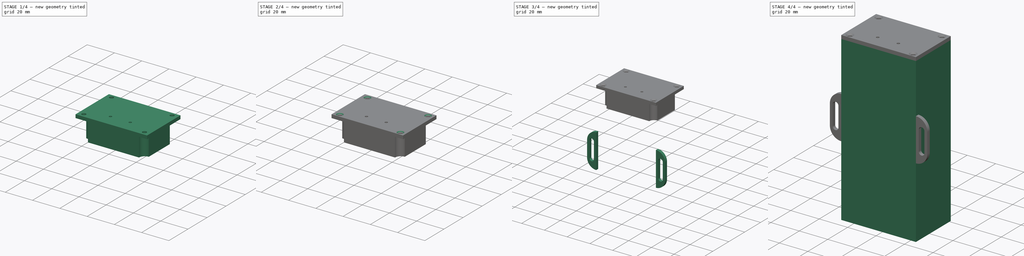
[diagram: build sequence overview — one tinted view per stage of 4, left to right]
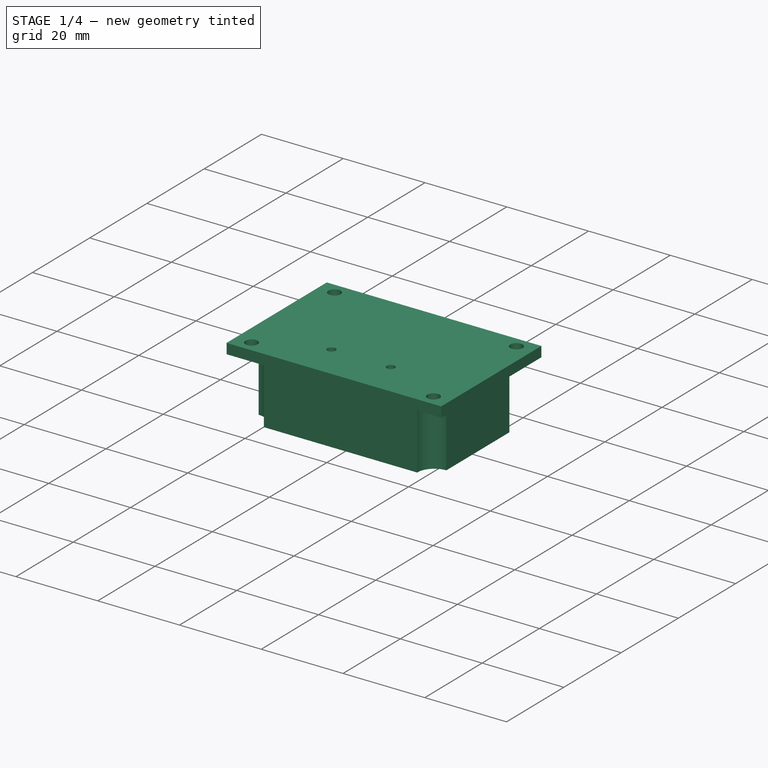
[diagram: stage 1 of 4 — iso view after this stage's code; geometry added in this stage tinted green]
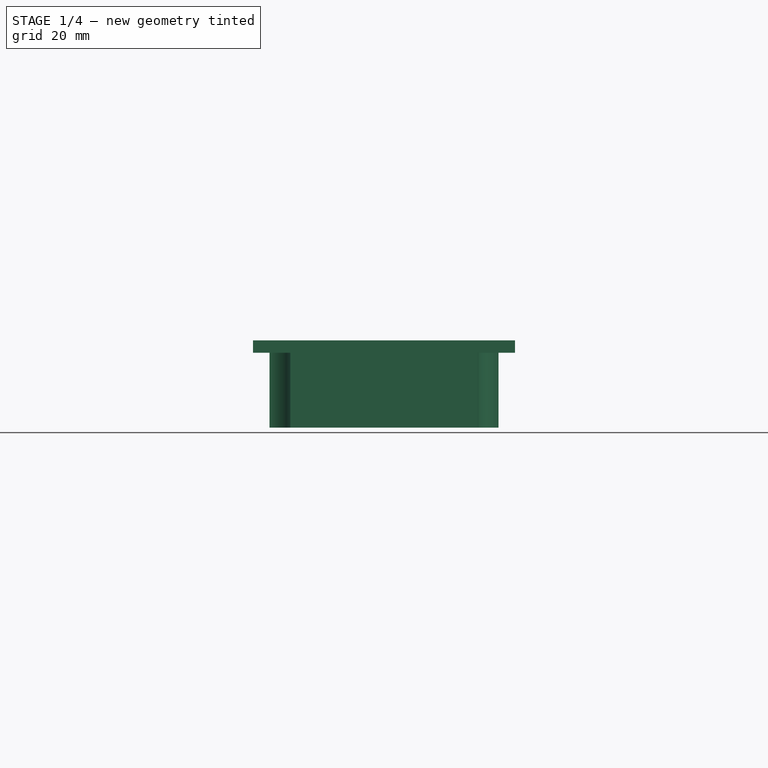
[diagram: stage 1 of 4 — front view after this stage's code; geometry added in this stage tinted green]
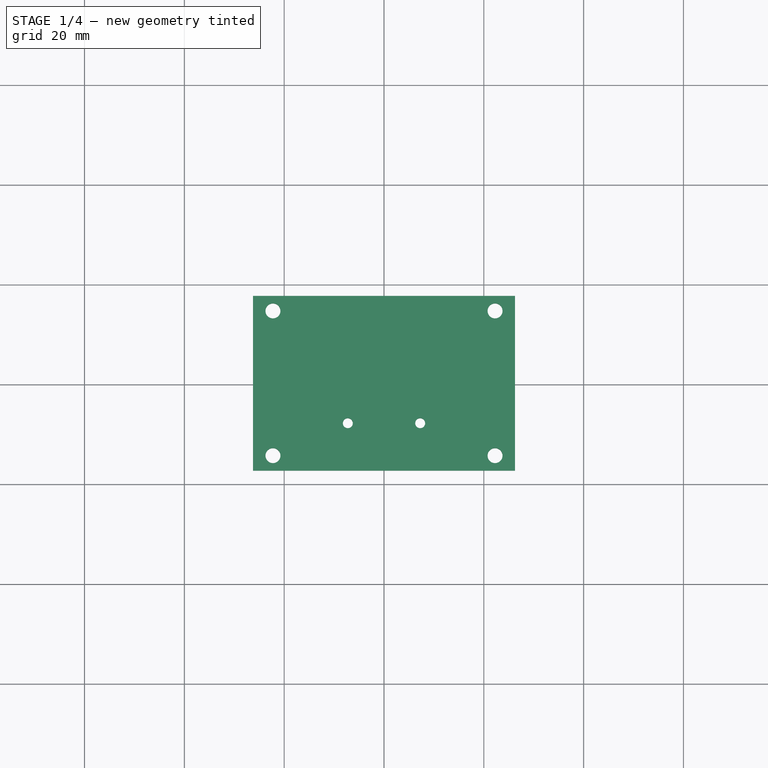
[diagram: stage 1 of 4 — top view after this stage's code; geometry added in this stage tinted green]
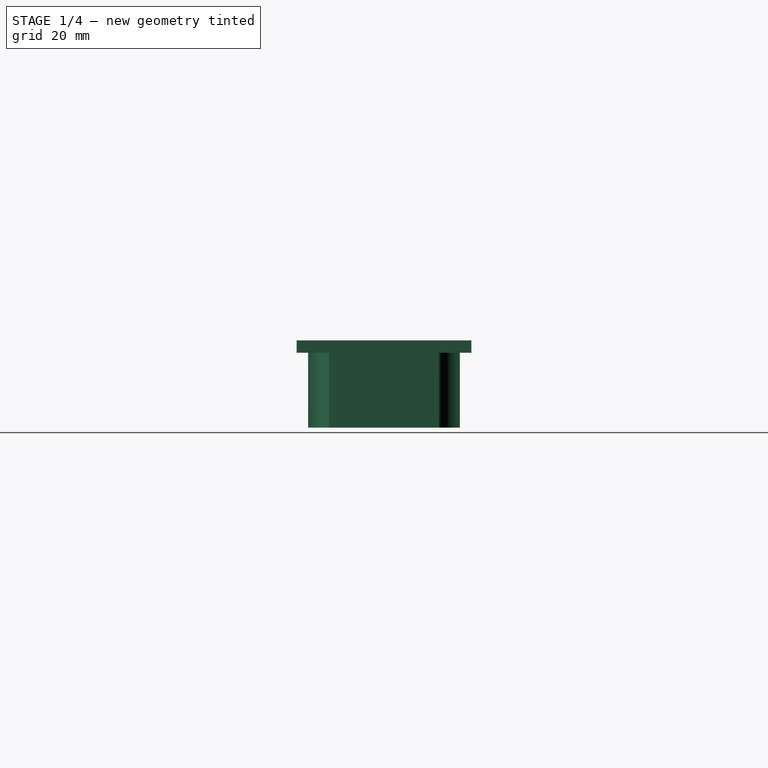
[diagram: stage 1 of 4 — right view after this stage's code; geometry added in this stage tinted green]
FCSTD DOCUMENT  (FreeCAD 1.0R39109 (Git))
Label: case-v2
License: All rights reserved
LicenseURL: https://en.wikipedia.org/wiki/All_rights_reserved
objects: Sketcher::SketchObject×8, PartDesign::Pad×8, PartDesign::Chamfer×3, PartDesign::Body×2, App::Part×1
note: 51 computed .brp shape members not serialized (recipe doc carries the construction recipe); baked Part::Feature solids carry a one-line shape summary decoded from their .brp

FEATURE [App::Part] Part  label="Kiste"
  Group = -> [Body002,Sketch,Sketch001,Pad,Pad001,Sketch008,Pad007,Sketch009,Pad008]
  Origin = -> Origin
FEATURE [Sketcher::SketchObject] Sketch006  label="Kante"
  ArcFitTolerance = 1e-06
  AttachmentOffset = pos=(0,0,108) rot=(0,0,1;0rad)
  AttachmentSupport = -> [XY_Plane002]
  FullyConstrained = true
  MakeInternals = false
  MapMode = 5
  Placement = pos=(0,0,108) rot=(0,0,1;0rad)
  sketch-geometry (48):
    g0: LineSegment [constr] StartX=-26.25 StartY=17.5 StartZ=0 EndX=-26.25 EndY=-17.5 EndZ=0
    g1: LineSegment [constr] StartX=-26.25 StartY=-17.5 StartZ=0 EndX=26.25 EndY=-17.5 EndZ=0
    g2: LineSegment [constr] StartX=26.25 StartY=-17.5 StartZ=0 EndX=26.25 EndY=17.5 EndZ=0
    g3: LineSegment [constr] StartX=26.25 StartY=17.5 StartZ=0 EndX=-26.25 EndY=17.5 EndZ=0
    g4: LineSegment StartX=-18.75 StartY=-15.2 StartZ=0 EndX=18.75 EndY=-15.2 EndZ=0
    g5: LineSegment StartX=22.95 StartY=-11 StartZ=0 EndX=22.95 EndY=11 EndZ=0
    g6: LineSegment StartX=18.75 StartY=15.2 StartZ=0 EndX=13 EndY=15.2 EndZ=0
    g7: LineSegment StartX=-22.95 StartY=11 StartZ=0 EndX=-22.95 EndY=-11 EndZ=0
    g8: ArcOfCircle CenterX=-22.95 CenterY=15.2 CenterZ=0 NormalX=0 NormalY=0 NormalZ=1 AngleXU=0 Radius=4.2 StartAngle=4.71239 EndAngle=6.28319
    g9: ArcOfCircle CenterX=22.95 CenterY=15.2 CenterZ=0 NormalX=0 NormalY=0 NormalZ=1 AngleXU=0 Radius=4.2 StartAngle=3.14159 EndAngle=4.71239
    g10: ArcOfCircle CenterX=-22.95 CenterY=-15.2 CenterZ=0 NormalX=0 NormalY=0 NormalZ=1 AngleXU=0 Radius=4.2 StartAngle=1e-16 EndAngle=1.5708
    g11: ArcOfCircle CenterX=22.95 CenterY=-15.2 CenterZ=0 NormalX=0 NormalY=0 NormalZ=1 AngleXU=0 Radius=4.2 StartAngle=1.5708 EndAngle=3.14159
    g12: ArcOfCircle CenterX=-22.95 CenterY=15.2 CenterZ=0 NormalX=0 NormalY=0 NormalZ=1 AngleXU=0 Radius=5.4 StartAngle=4.93648 EndAngle=6.05909
    g13: ArcOfCircle CenterX=22.95 CenterY=15.2 CenterZ=0 NormalX=0 NormalY=0 NormalZ=1 AngleXU=0 Radius=5.4 StartAngle=3.36569 EndAngle=4.4883
    g14: ArcOfCircle CenterX=-22.95 CenterY=-15.2 CenterZ=0 NormalX=0 NormalY=0 NormalZ=1 AngleXU=0 Radius=5.4 StartAngle=0.224093 EndAngle=1.3467
    g15: ArcOfCircle CenterX=22.95 CenterY=-15.2 CenterZ=0 NormalX=0 NormalY=0 NormalZ=1 AngleXU=0 Radius=5.4 StartAngle=1.79489 EndAngle=2.9175
    g16: LineSegment StartX=-21.75 StartY=7.3 StartZ=0 EndX=-21.75 EndY=-0.8 EndZ=0
    g17: LineSegment StartX=21.75 StartY=9.93502 StartZ=0 EndX=21.75 EndY=8.5 EndZ=0
    g18: LineSegment StartX=21.75 StartY=7.3 StartZ=0 EndX=21.75 EndY=-0.8 EndZ=0
    g19: LineSegment StartX=14.2 StartY=14 StartZ=0 EndX=17.685 EndY=14 EndZ=0
    g20: LineSegment StartX=14.2 StartY=8.5 StartZ=0 EndX=21.75 EndY=8.5 EndZ=0
    g21: LineSegment StartX=-21.75 StartY=9.93502 StartZ=0 EndX=-21.75 EndY=8.5 EndZ=0
    g22: LineSegment [constr] StartX=-26.25 StartY=8.5 StartZ=0 EndX=26.25 EndY=8.5 EndZ=0
    g23: LineSegment StartX=14.2 StartY=7.3 StartZ=0 EndX=21.75 EndY=7.3 EndZ=0
    g24: LineSegment StartX=13 StartY=-14 StartZ=0 EndX=13 EndY=15.2 EndZ=0
    g25: LineSegment StartX=14.2 StartY=-14 StartZ=0 EndX=14.2 EndY=-2 EndZ=0
    g26: LineSegment StartX=14.2 StartY=-14 StartZ=0 EndX=17.685 EndY=-14 EndZ=0
    g27: LineSegment StartX=14.2 StartY=8.5 StartZ=0 EndX=14.2 EndY=14 EndZ=0
    g28: LineSegment StartX=-17.685 StartY=-14 StartZ=0 EndX=-14.2 EndY=-14 EndZ=0
    g29: LineSegment StartX=-18.75 StartY=15.2 StartZ=0 EndX=-13 EndY=15.2 EndZ=0
    g30: LineSegment StartX=-17.685 StartY=14 StartZ=0 EndX=-14.2 EndY=14 EndZ=0
    g31: LineSegment StartX=-13 StartY=15.2 StartZ=0 EndX=-13 EndY=-14 EndZ=0
    g32: LineSegment StartX=-14.2 StartY=-14 StartZ=0 EndX=-14.2 EndY=-2 EndZ=0
    g33: LineSegment StartX=-13 StartY=-14 StartZ=0 EndX=13 EndY=-14 EndZ=0
    g34: LineSegment StartX=-21.75 StartY=8.5 StartZ=0 EndX=-14.2 EndY=8.5 EndZ=0
    g35: LineSegment StartX=-21.75 StartY=7.3 StartZ=0 EndX=-14.2 EndY=7.3 EndZ=0
    g36: LineSegment StartX=-14.2 StartY=8.5 StartZ=0 EndX=-14.2 EndY=14 EndZ=0
    g37: LineSegment StartX=-21.75 StartY=-0.8 StartZ=0 EndX=-14.2 EndY=-0.8 EndZ=0
    g38: LineSegment StartX=-21.75 StartY=-2 StartZ=0 EndX=-14.2 EndY=-2 EndZ=0
    g39: LineSegment StartX=-21.75 StartY=-2 StartZ=0 EndX=-21.75 EndY=-9.93502 EndZ=0
    g40: LineSegment StartX=-14.2 StartY=-0.8 StartZ=0 EndX=-14.2 EndY=7.3 EndZ=0
    g41: LineSegment [constr] StartX=-26.25 StartY=-2 StartZ=0 EndX=26.25 EndY=-2 EndZ=0
    g42: LineSegment StartX=14.2 StartY=-2 StartZ=0 EndX=21.75 EndY=-2 EndZ=0
    g43: LineSegment StartX=14.2 StartY=-0.8 StartZ=0 EndX=21.75 EndY=-0.8 EndZ=0
    g44: LineSegment StartX=21.75 StartY=-2 StartZ=0 EndX=21.75 EndY=-9.93502 EndZ=0
    g45: LineSegment StartX=14.2 StartY=-0.8 StartZ=0 EndX=14.2 EndY=7.3 EndZ=0
    g46: Circle [constr] CenterX=-7 CenterY=-8 CenterZ=0 NormalX=0 NormalY=0 NormalZ=1 AngleXU=0 Radius=5
    g47: Circle [constr] CenterX=7 CenterY=-8 CenterZ=0 NormalX=0 NormalY=0 NormalZ=1 AngleXU=0 Radius=5
  constraints (160):
    c: Coincident(g0,g1)
    c: Coincident(g1,g2)
    c: Coincident(g2,g3)
    c: Coincident(g3,g0)
    c: Vertical(g0)
    c: Vertical(g2)
    c: Horizontal(g1)
    c: Horizontal(g3)
    c: Symmetric(g0,g2,g-1)
    c: DistanceY(g0,g0) = 35
    c: Vertical(g5)
    c: Horizontal(g4)
    c: Horizontal(g6)
    c: DistanceY(g0,g10) = 2.3
    c: DistanceY(g8,g0) = 2.3
    c: Vertical(g7)
    c: DistanceX(g0,g2) = 52.5
    c: Radius(g8) = 4.2
    c: Radius(g11) = 4.2
    c: Radius(g10) = 4.2
    c: Radius(g9) = 4.2
    c: Coincident(g7,g10)
    c: Coincident(g4,g10)
    c: Coincident(g6,g9)
    c: Coincident(g4,g11)
    c: Coincident(g5,g11)
    c: DistanceX(g0,g8) = 3.3
    c: Perpendicular(g9,g6,g6) = 4.71239
    c: Perpendicular(g11,g4)
    c: Perpendicular(g11,g5)
    c: Perpendicular(g10,g4)
    c: Perpendicular(g10,g7)
    c: DistanceX(g9,g2) = 3.3
    c: DistanceX(g0,g10) = 3.3
    c: Coincident(g7,g8)
    c: Coincident(g5,g9)
    c: Perpendicular(g9,g5)
    c: DistanceY(g4,g14) = 1.2
    c: DistanceY(g19,g6) = 1.2
    c: DistanceX(g17,g5) = 1.2
    c: DistanceX(g7,g12) = 1.2
    c: Radius(g12) = 5.4
    c: Coincident(g12,g8)
    c: Radius(g13) = 5.4
    c: Coincident(g13,g9)
    c: Coincident(g13,g19)
    c: Coincident(g13,g17)
    c: Radius(g14) = 5.4
    c: Coincident(g14,g10)
    c: Coincident(g14,g39)
    c: Radius(g15) = 5.4
    c: Coincident(g15,g11)
    c: Coincident(g15,g44)
    c: Vertical(g16)
    c: Vertical(g17)
    c: DistanceX(g7,g16) = 1.2
    c: Parallel(g18,g5)
    c: DistanceX(g23,g5) = 1.2
    c: Coincident(g18,g23)
    c: DistanceX(g6,g19) = 1.2
    c: Horizontal(g19)
    c: Horizontal(g20)
    c: Coincident(g21,g12)
    c: Vertical(g21)
    c: DistanceY(g16,g21) = 1.2
    c: Horizontal(g22)
    c: PointOnObject(g17,g22)
    c: PointOnObject(g20,g22)
    c: PointOnObject(g20,g17)
    c: PointOnObject(g22,g2)
    c: PointOnObject(g22,g0)
    c: Coincident(g26,g15)
    c: Vertical(g24)
    c: PointOnObject(g25,g26)
    c: Vertical(g25)
    c: Coincident(g6,g24)
    c: PointOnObject(g27,g19)
    c: PointOnObject(g26,g25)
    c: Coincident(g45,g23)
    c: PointOnObject(g27,g22)
    c: Parallel(g27,g24)
    c: DistanceX(g24,g25) = 1.2
    c: PointOnObject(g19,g27)
    c: PointOnObject(g20,g27)
    c: Parallel(g23,g20)
    c: Coincident(g30,g36)
    c: PointOnObject(g31,g33)
    c: PointOnObject(g33,g31)
    c: DistanceX(g30,g29) = 1.2
    c: Parallel(g32,g31)
    c: Coincident(g29,g31)
    c: Vertical(g32)
    c: Horizontal(g28)
    c: Coincident(g34,g21)
    c: Horizontal(g34)
    c: Coincident(g35,g16)
    c: Horizontal(g35)
    c: PointOnObject(g34,g36)
    c: Coincident(g40,g35)
    c: PointOnObject(g36,g22)
    c: Symmetric(g34,g20,g-2)
    c: Parallel(g36,g31)
    c: DistanceX(g29,g6) = 26
    c: Equal(g34,g35)
    c: Coincident(g33,g24)
    c: PointOnObject(g8,g29)
    c: Parallel(g29,g30)
    c: Coincident(g12,g30)
    c: Perpendicular(g8,g29)
    c: DistanceY(g12,g8) = 1.2
    c: Equal(g31,g24)
    c: Parallel(g29,g3)
    c: DistanceY(g18,g17) = 1.2
    c: Coincident(g32,g28)
    c: Coincident(g28,g14)
    c: DistanceY(g4,g31) = 1.2
    c: Parallel(g4,g26)
    c: Parallel(g26,g33)
    c: DistanceY(g4,g15) = 1.2
    c: DistanceY(g22,g2) = 9
    c: PointOnObject(g29,g8)
    c: Horizontal(g37)
    c: PointOnObject(g38,g39)
    c: Horizontal(g38)
    c: Coincident(g16,g37)
    c: PointOnObject(g39,g38)
    c: PointOnObject(g37,g40)
    c: Coincident(g32,g38)
    c: PointOnObject(g40,g37)
    c: Equal(g37,g35)
    c: Equal(g38,g37)
    c: DistanceY(g38,g16) = 1.2
    c: Parallel(g39,g7)
    c: DistanceX(g7,g14) = 1.2
    c: PointOnObject(g41,g0)
    c: PointOnObject(g41,g2)
    c: Horizontal(g41)
    c: PointOnObject(g32,g41)
    c: PointOnObject(g42,g25)
    c: PointOnObject(g42,g44)
    c: PointOnObject(g42,g41)
    c: PointOnObject(g42,g41)
    c: Horizontal(g43)
    c: PointOnObject(g43,g45)
    c: Coincident(g18,g43)
    c: PointOnObject(g44,g41)
    c: PointOnObject(g25,g41)
    c: PointOnObject(g45,g43)
    c: Equal(g42,g43)
    c: DistanceY(g42,g18) = 1.2
    c: DistanceY(g1,g41) = 15.5
    c: Parallel(g44,g5)
    c: Parallel(g45,g24)
    c: DistanceX(g15,g5) = 1.2
    c: Radius(g46) = 5
    c: DistanceX(g31,g46) = 6
    c: DistanceY(g31,g46) = 6
    c: Radius(g47) = 5
    c: DistanceX(g47,g24) = 6
    c: DistanceY(g24,g47) = 6
FEATURE [PartDesign::Pad] Pad011
  Direction = (0,0,1)
  Length = 2.5
  Length2 = 10
  Profile = -> Sketch003
  ReferenceAxis = -> Sketch003 [N_Axis]
  Refine = true
  Suppressed = false
  Type = 0
FEATURE [Sketcher::SketchObject] Sketch010  label="Kante2"
  ArcFitTolerance = 1e-06
  AttachmentOffset = pos=(0,0,100) rot=(0,0,1;0rad)
  AttachmentSupport = -> [XY_Plane002]
  FullyConstrained = true
  MakeInternals = false
  MapMode = 5
  Placement = pos=(0,0,100) rot=(0,0,1;0rad)
  sketch-geometry (56):
    g0: LineSegment [constr] StartX=-26.25 StartY=17.5 StartZ=0 EndX=-26.25 EndY=-17.5 EndZ=0
    g1: LineSegment [constr] StartX=-26.25 StartY=-17.5 StartZ=0 EndX=26.25 EndY=-17.5 EndZ=0
    g2: LineSegment [constr] StartX=26.25 StartY=-17.5 StartZ=0 EndX=26.25 EndY=17.5 EndZ=0
    g3: LineSegment [constr] StartX=26.25 StartY=17.5 StartZ=0 EndX=-26.25 EndY=17.5 EndZ=0
    g4: LineSegment StartX=-18.75 StartY=-15.2 StartZ=0 EndX=18.75 EndY=-15.2 EndZ=0
    g5: LineSegment StartX=22.95 StartY=-11 StartZ=0 EndX=22.95 EndY=11 EndZ=0
    g6: LineSegment StartX=18.75 StartY=15.2 StartZ=0 EndX=13 EndY=15.2 EndZ=0
    g7: LineSegment StartX=-22.95 StartY=11 StartZ=0 EndX=-22.95 EndY=-11 EndZ=0
    g8: ArcOfCircle CenterX=-22.95 CenterY=15.2 CenterZ=0 NormalX=0 NormalY=0 NormalZ=1 AngleXU=0 Radius=4.2 StartAngle=4.71239 EndAngle=6.28319
    g9: ArcOfCircle CenterX=22.95 CenterY=15.2 CenterZ=0 NormalX=0 NormalY=0 NormalZ=1 AngleXU=0 Radius=4.2 StartAngle=3.14159 EndAngle=4.71239
    g10: ArcOfCircle CenterX=-22.95 CenterY=-15.2 CenterZ=0 NormalX=0 NormalY=0 NormalZ=1 AngleXU=0 Radius=4.2 StartAngle=1e-16 EndAngle=1.5708
    g11: ArcOfCircle CenterX=22.95 CenterY=-15.2 CenterZ=0 NormalX=0 NormalY=0 NormalZ=1 AngleXU=0 Radius=4.2 StartAngle=1.5708 EndAngle=3.14159
    g12: ArcOfCircle CenterX=-22.95 CenterY=15.2 CenterZ=0 NormalX=0 NormalY=0 NormalZ=1 AngleXU=0 Radius=5.4 StartAngle=4.93648 EndAngle=6.05909
    g13: ArcOfCircle CenterX=22.95 CenterY=15.2 CenterZ=0 NormalX=0 NormalY=0 NormalZ=1 AngleXU=0 Radius=5.4 StartAngle=3.36569 EndAngle=4.4883
    g14: ArcOfCircle CenterX=-22.95 CenterY=-15.2 CenterZ=0 NormalX=0 NormalY=0 NormalZ=1 AngleXU=0 Radius=5.4 StartAngle=0.224093 EndAngle=1.3467
    g15: ArcOfCircle CenterX=22.95 CenterY=-15.2 CenterZ=0 NormalX=0 NormalY=0 NormalZ=1 AngleXU=0 Radius=5.4 StartAngle=1.79489 EndAngle=2.9175
    g16: LineSegment StartX=-21.75 StartY=7.3 StartZ=0 EndX=-21.75 EndY=-0.8 EndZ=0
    g17: LineSegment StartX=21.75 StartY=9.93502 StartZ=0 EndX=21.75 EndY=8.5 EndZ=0
    g18: LineSegment StartX=21.75 StartY=7.3 StartZ=0 EndX=21.75 EndY=-0.8 EndZ=0
    g19: LineSegment StartX=14.2 StartY=14 StartZ=0 EndX=17.685 EndY=14 EndZ=0
    g20: LineSegment StartX=14.2 StartY=8.5 StartZ=0 EndX=21.75 EndY=8.5 EndZ=0
    g21: LineSegment StartX=-21.75 StartY=9.93502 StartZ=0 EndX=-21.75 EndY=8.5 EndZ=0
    g22: LineSegment [constr] StartX=-26.25 StartY=8.5 StartZ=0 EndX=26.25 EndY=8.5 EndZ=0
    g23: LineSegment StartX=14.2 StartY=7.3 StartZ=0 EndX=21.75 EndY=7.3 EndZ=0
    g24: LineSegment StartX=13 StartY=-14 StartZ=0 EndX=13 EndY=-2 EndZ=0
    g25: LineSegment StartX=14.2 StartY=-14 StartZ=0 EndX=14.2 EndY=-2 EndZ=0
    g26: LineSegment StartX=14.2 StartY=-14 StartZ=0 EndX=17.685 EndY=-14 EndZ=0
    g27: LineSegment StartX=14.2 StartY=8.5 StartZ=0 EndX=14.2 EndY=14 EndZ=0
    g28: LineSegment StartX=-17.685 StartY=-14 StartZ=0 EndX=-14.2 EndY=-14 EndZ=0
    g29: LineSegment StartX=-18.75 StartY=15.2 StartZ=0 EndX=-13 EndY=15.2 EndZ=0
    g30: LineSegment StartX=-17.685 StartY=14 StartZ=0 EndX=-14.2 EndY=14 EndZ=0
    g31: LineSegment StartX=-13 StartY=15.2 StartZ=0 EndX=-13 EndY=8.5 EndZ=0
    g32: LineSegment StartX=-14.2 StartY=-14 StartZ=0 EndX=-14.2 EndY=-2 EndZ=0
    g33: LineSegment StartX=-13 StartY=-14 StartZ=0 EndX=13 EndY=-14 EndZ=0
    g34: LineSegment StartX=-21.75 StartY=8.5 StartZ=0 EndX=-14.2 EndY=8.5 EndZ=0
    g35: LineSegment StartX=-21.75 StartY=7.3 StartZ=0 EndX=-14.2 EndY=7.3 EndZ=0
    g36: LineSegment StartX=-14.2 StartY=8.5 StartZ=0 EndX=-14.2 EndY=14 EndZ=0
    g37: LineSegment StartX=-21.75 StartY=-0.8 StartZ=0 EndX=-14.2 EndY=-0.8 EndZ=0
    g38: LineSegment StartX=-21.75 StartY=-2 StartZ=0 EndX=-14.2 EndY=-2 EndZ=0
    g39: LineSegment StartX=-21.75 StartY=-2 StartZ=0 EndX=-21.75 EndY=-9.93502 EndZ=0
    g40: LineSegment StartX=-14.2 StartY=-0.8 StartZ=0 EndX=-14.2 EndY=7.3 EndZ=0
    g41: LineSegment [constr] StartX=-26.25 StartY=-2 StartZ=0 EndX=26.25 EndY=-2 EndZ=0
    g42: LineSegment StartX=14.2 StartY=-2 StartZ=0 EndX=21.75 EndY=-2 EndZ=0
    g43: LineSegment StartX=14.2 StartY=-0.8 StartZ=0 EndX=21.75 EndY=-0.8 EndZ=0
    g44: LineSegment StartX=21.75 StartY=-2 StartZ=0 EndX=21.75 EndY=-9.93502 EndZ=0
    g45: LineSegment StartX=14.2 StartY=-0.8 StartZ=0 EndX=14.2 EndY=7.3 EndZ=0
    g46: Circle [constr] CenterX=-7 CenterY=-8 CenterZ=0 NormalX=0 NormalY=0 NormalZ=1 AngleXU=0 Radius=5
    g47: Circle [constr] CenterX=7 CenterY=-8 CenterZ=0 NormalX=0 NormalY=0 NormalZ=1 AngleXU=0 Radius=5
    g48: LineSegment StartX=-13 StartY=8.5 StartZ=0 EndX=13 EndY=8.5 EndZ=0
    g49: LineSegment StartX=-13 StartY=7.3 StartZ=0 EndX=13 EndY=7.3 EndZ=0
    g50: LineSegment StartX=-13 StartY=-0.8 StartZ=0 EndX=13 EndY=-0.8 EndZ=0
    g51: LineSegment StartX=-13 StartY=-2 StartZ=0 EndX=13 EndY=-2 EndZ=0
    g52: LineSegment StartX=-13 StartY=7.3 StartZ=0 EndX=-13 EndY=-0.8 EndZ=0
    g53: LineSegment StartX=13 StartY=8.5 StartZ=0 EndX=13 EndY=15.2 EndZ=0
    g54: LineSegment StartX=-13 StartY=-2 StartZ=0 EndX=-13 EndY=-14 EndZ=0
    g55: LineSegment StartX=13 StartY=-0.8 StartZ=0 EndX=13 EndY=7.3 EndZ=0
  constraints (190):
    c: Coincident(g0,g1)
    c: Coincident(g1,g2)
    c: Coincident(g2,g3)
    c: Coincident(g3,g0)
    c: Vertical(g0)
    c: Vertical(g2)
    c: Horizontal(g1)
    c: Horizontal(g3)
    c: Symmetric(g0,g2,g-1)
    c: DistanceY(g0,g0) = 35
    c: Vertical(g5)
    c: Horizontal(g4)
    c: Horizontal(g6)
    c: DistanceY(g0,g10) = 2.3
    c: DistanceY(g8,g0) = 2.3
    c: Vertical(g7)
    c: DistanceX(g0,g2) = 52.5
    c: Radius(g8) = 4.2
    c: Radius(g11) = 4.2
    c: Radius(g10) = 4.2
    c: Radius(g9) = 4.2
    c: Coincident(g7,g10)
    c: Coincident(g4,g10)
    c: Coincident(g6,g9)
    c: Coincident(g4,g11)
    c: Coincident(g5,g11)
    c: DistanceX(g0,g8) = 3.3
    c: Perpendicular(g9,g6,g6) = 4.71239
    c: Perpendicular(g11,g4)
    c: Perpendicular(g11,g5)
    c: Perpendicular(g10,g4)
    c: Perpendicular(g10,g7)
    c: DistanceX(g9,g2) = 3.3
    c: DistanceX(g0,g10) = 3.3
    c: Coincident(g7,g8)
    c: Coincident(g5,g9)
    c: Perpendicular(g9,g5)
    c: DistanceY(g4,g14) = 1.2
    c: DistanceY(g19,g6) = 1.2
    c: DistanceX(g17,g5) = 1.2
    c: DistanceX(g7,g12) = 1.2
    c: Radius(g12) = 5.4
    c: Coincident(g12,g8)
    c: Radius(g13) = 5.4
    c: Coincident(g13,g9)
    c: Coincident(g13,g19)
    c: Coincident(g13,g17)
    c: Radius(g14) = 5.4
    c: Coincident(g14,g10)
    c: Coincident(g14,g39)
    c: Radius(g15) = 5.4
    c: Coincident(g15,g11)
    c: Coincident(g15,g44)
    c: Vertical(g16)
    c: Vertical(g17)
    c: DistanceX(g7,g16) = 1.2
    c: Parallel(g18,g5)
    c: DistanceX(g23,g5) = 1.2
    c: Coincident(g18,g23)
    c: DistanceX(g6,g19) = 1.2
    c: Horizontal(g19)
    c: Horizontal(g20)
    c: Coincident(g21,g12)
    c: Vertical(g21)
    c: DistanceY(g16,g21) = 1.2
    c: Horizontal(g22)
    c: PointOnObject(g17,g22)
    c: PointOnObject(g20,g22)
    c: PointOnObject(g20,g17)
    c: PointOnObject(g22,g2)
    c: PointOnObject(g22,g0)
    c: Coincident(g26,g15)
    c: Vertical(g24)
    c: PointOnObject(g25,g26)
    c: Vertical(g25)
    c: Coincident(g6,g53)
    c: PointOnObject(g27,g19)
    c: PointOnObject(g26,g25)
    c: Coincident(g45,g23)
    c: PointOnObject(g27,g22)
    c: Parallel(g27,g24)
    c: DistanceX(g24,g25) = 1.2
    c: PointOnObject(g19,g27)
    c: PointOnObject(g20,g27)
    c: Parallel(g23,g20)
    c: Coincident(g30,g36)
    c: PointOnObject(g54,g33)
    c: PointOnObject(g33,g31)
    c: DistanceX(g30,g29) = 1.2
    c: Parallel(g32,g31)
    c: Coincident(g29,g31)
    c: Vertical(g32)
    c: Horizontal(g28)
    c: Coincident(g34,g21)
    c: Horizontal(g34)
    c: Coincident(g35,g16)
    c: Horizontal(g35)
    c: PointOnObject(g34,g36)
    c: Coincident(g40,g35)
    c: PointOnObject(g36,g22)
    c: Symmetric(g34,g20,g-2)
    c: Parallel(g36,g31)
    c: DistanceX(g29,g6) = 26
    c: Equal(g34,g35)
    c: Coincident(g33,g24)
    c: PointOnObject(g8,g29)
    c: Parallel(g29,g30)
    c: Coincident(g12,g30)
    c: Perpendicular(g8,g29)
    c: DistanceY(g12,g8) = 1.2
    c: Parallel(g29,g3)
    c: DistanceY(g18,g17) = 1.2
    c: Coincident(g32,g28)
    c: Coincident(g28,g14)
    c: DistanceY(g4,g54) = 1.2
    c: Parallel(g4,g26)
    c: Parallel(g26,g33)
    c: DistanceY(g4,g15) = 1.2
    c: DistanceY(g22,g2) = 9
    c: PointOnObject(g29,g8)
    c: Horizontal(g37)
    c: PointOnObject(g38,g39)
    c: Horizontal(g38)
    c: Coincident(g16,g37)
    c: PointOnObject(g39,g38)
    c: PointOnObject(g37,g40)
    c: Coincident(g32,g38)
    c: PointOnObject(g40,g37)
    c: Equal(g37,g35)
    c: Equal(g38,g37)
    c: DistanceY(g38,g16) = 1.2
    c: Parallel(g39,g7)
    c: DistanceX(g7,g14) = 1.2
    c: PointOnObject(g41,g0)
    c: PointOnObject(g41,g2)
    c: Horizontal(g41)
    c: PointOnObject(g32,g41)
    c: PointOnObject(g42,g25)
    c: PointOnObject(g42,g44)
    c: PointOnObject(g42,g41)
    c: PointOnObject(g42,g41)
    c: Horizontal(g43)
    c: PointOnObject(g43,g45)
    c: Coincident(g18,g43)
    c: PointOnObject(g44,g41)
    c: PointOnObject(g25,g41)
    c: PointOnObject(g45,g43)
    c: Equal(g42,g43)
    c: DistanceY(g42,g18) = 1.2
    c: DistanceY(g1,g41) = 15.5
    c: Parallel(g44,g5)
    c: Parallel(g45,g24)
    c: DistanceX(g15,g5) = 1.2
    c: Radius(g46) = 5
    c: DistanceX(g54,g46) = 6
    c: DistanceY(g54,g46) = 6
    c: Radius(g47) = 5
    c: DistanceX(g47,g24) = 6
    c: DistanceY(g24,g47) = 6
    c: PointOnObject(g48,g31)
    c: Horizontal(g48)
    c: PointOnObject(g49,g52)
    c: Horizontal(g49)
    c: PointOnObject(g50,g55)
    c: Horizontal(g50)
    c: PointOnObject(g31,g22)
    c: PointOnObject(g52,g49)
    c: PointOnObject(g48,g53)
    c: Coincident(g55,g49)
    c: PointOnObject(g53,g22)
    c: DistanceY(g49,g31) = 1.2
    c: DistanceX(g35,g49) = 1.2
    c: Coincident(g52,g50)
    c: PointOnObject(g54,g41)
    c: PointOnObject(g51,g24)
    c: PointOnObject(g24,g41)
    c: PointOnObject(g55,g50)
    c: PointOnObject(g51,g54)
    c: PointOnObject(g51,g41)
    c: DistanceX(g49,g23) = 1.2
    c: Equal(g55,g45)
    c: Equal(g52,g52)
    c: Equal(g49,g48)
    c: Equal(g51,g50)
    c: Parallel(g53,g27)
    c: Parallel(g55,g45)
    c: Parallel(g54,g32)
    c: Parallel(g51,g50)
    c: PointOnObject(g48,g22)
    c: DistanceY(g9,g2) = 2.3
FEATURE [PartDesign::Pad] Pad010
  BaseFeature = -> Pad011
  Direction = (0,0,1)
  Length = 7
  Length2 = 10
  Profile = -> Sketch006
  ReferenceAxis = -> Sketch006 [N_Axis]
  Refine = true
  Suppressed = false
  Type = 0
FEATURE [PartDesign::Pad] Pad012
  BaseFeature = -> Pad010
  Direction = (0,0,1)
  Length = 8
  Length2 = 10
  Profile = -> Sketch010
  ReferenceAxis = -> Sketch010 [N_Axis]
  Refine = true
  Suppressed = false
  Type = 0
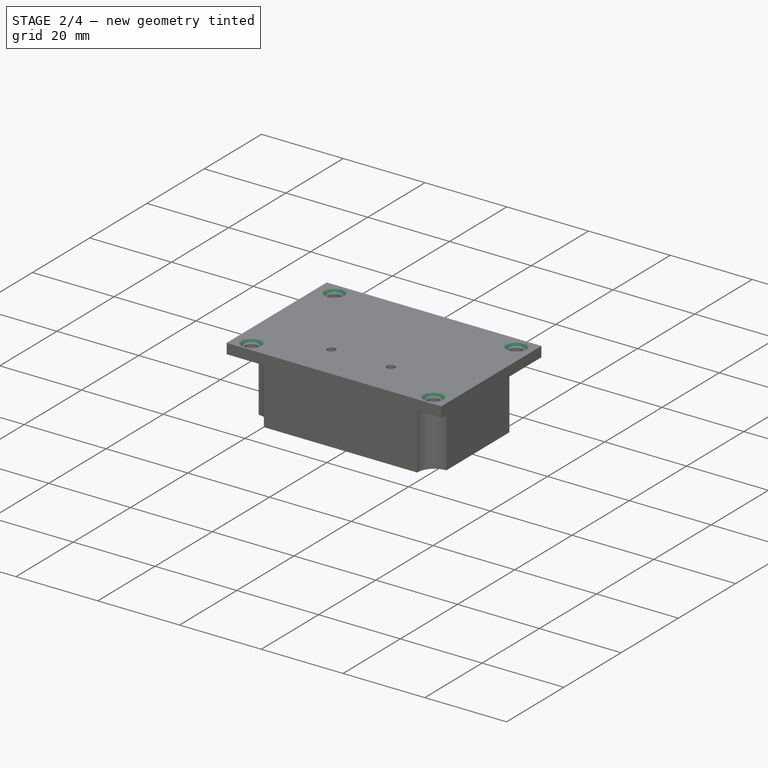
[diagram: stage 2 of 4 — iso view after this stage's code; geometry added in this stage tinted green]
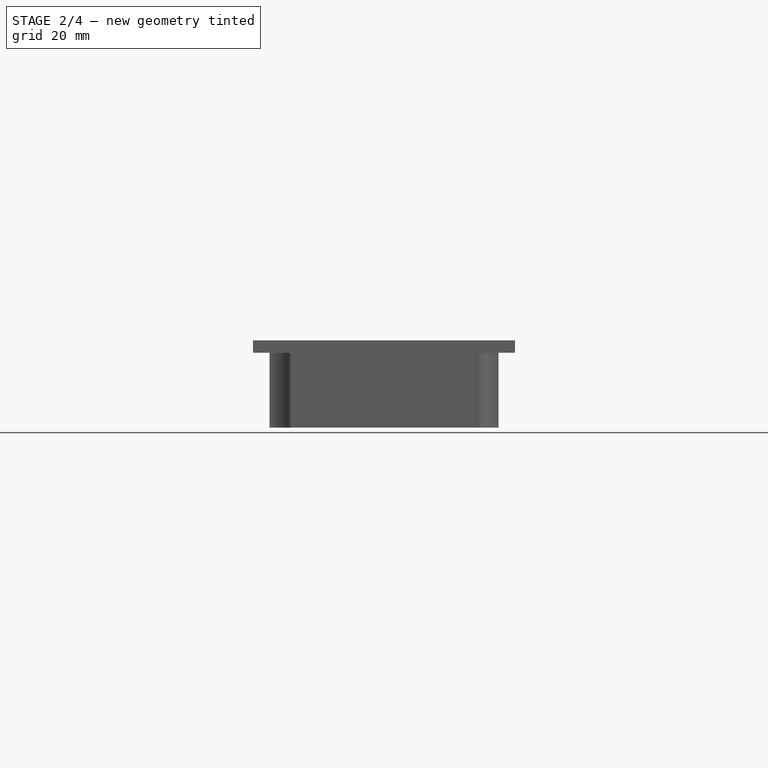
[diagram: stage 2 of 4 — front view after this stage's code; geometry added in this stage tinted green]
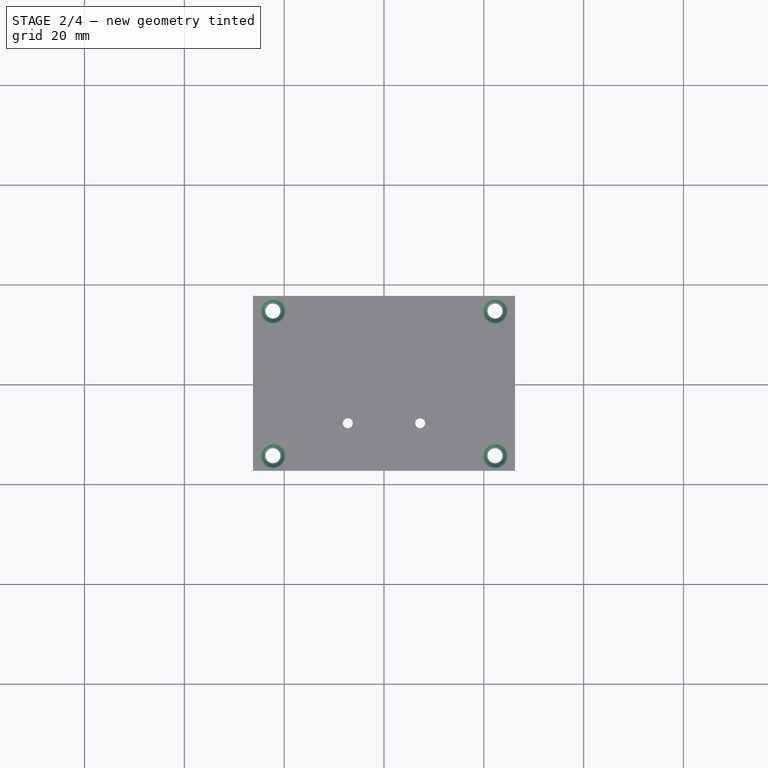
[diagram: stage 2 of 4 — top view after this stage's code; geometry added in this stage tinted green]
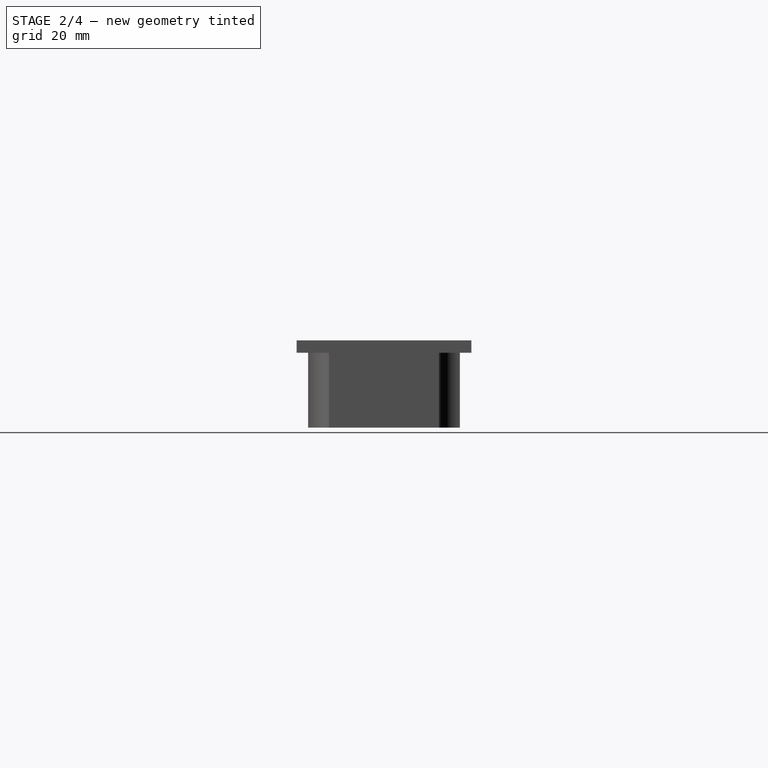
[diagram: stage 2 of 4 — right view after this stage's code; geometry added in this stage tinted green]
FEATURE [PartDesign::Chamfer] Chamfer
  Angle = 45
  Base = -> Pad012 [Edge139,Edge140,Edge137,Edge138]
  BaseFeature = -> Pad012
  ChamferType = 0
  FlipDirection = false
  Refine = true
  Size = 1
  Size2 = 1
  SupportTransform = false
  Suppressed = false
  UseAllEdges = false
FEATURE [PartDesign::Chamfer] Chamfer001
  Angle = 45
  Base = -> Chamfer [Edge24,Edge22]
  BaseFeature = -> Chamfer
  ChamferType = 0
  FlipDirection = false
  Refine = true
  Size = 1
  Size2 = 1
  SupportTransform = false
  Suppressed = false
  UseAllEdges = false
FEATURE [PartDesign::Chamfer] Chamfer002
  Angle = 45
  Base = -> Chamfer [Edge24,Edge22]
  BaseFeature = -> Chamfer
  ChamferType = 0
  FlipDirection = false
  Refine = true
  Size = 1
  Size2 = 1
  SupportTransform = false
  Suppressed = false
  UseAllEdges = false
FEATURE [PartDesign::Body] Body001  label="Deckel"
  AllowCompound = false
  Group = -> [Sketch003,Pad011,Pad010,Sketch006,Sketch010,Pad012,Chamfer,Chamfer001,Chamfer002]
  Origin = -> Origin002
  Tip = -> Chamfer002
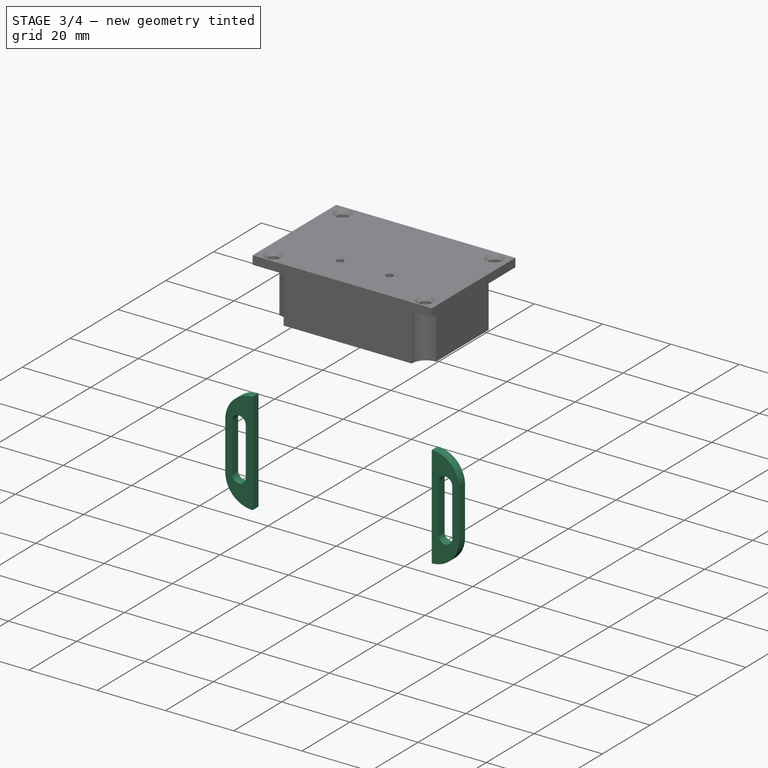
[diagram: stage 3 of 4 — iso view after this stage's code; geometry added in this stage tinted green]
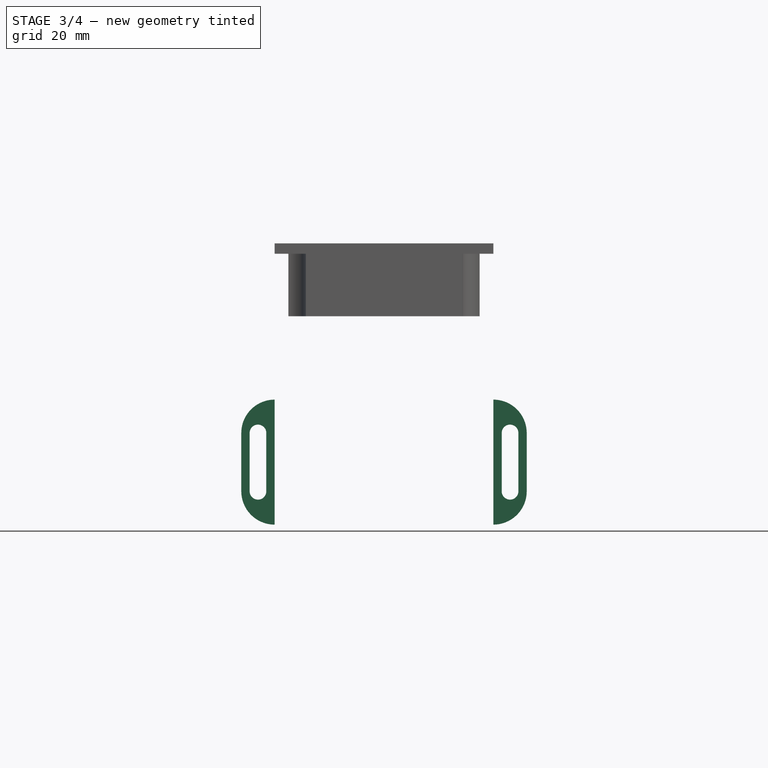
[diagram: stage 3 of 4 — front view after this stage's code; geometry added in this stage tinted green]
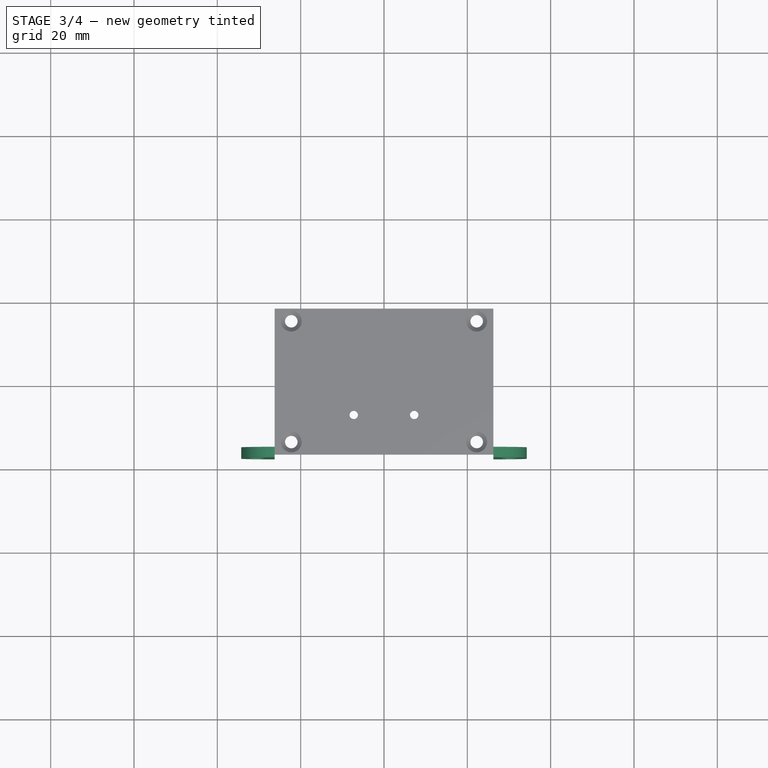
[diagram: stage 3 of 4 — top view after this stage's code; geometry added in this stage tinted green]
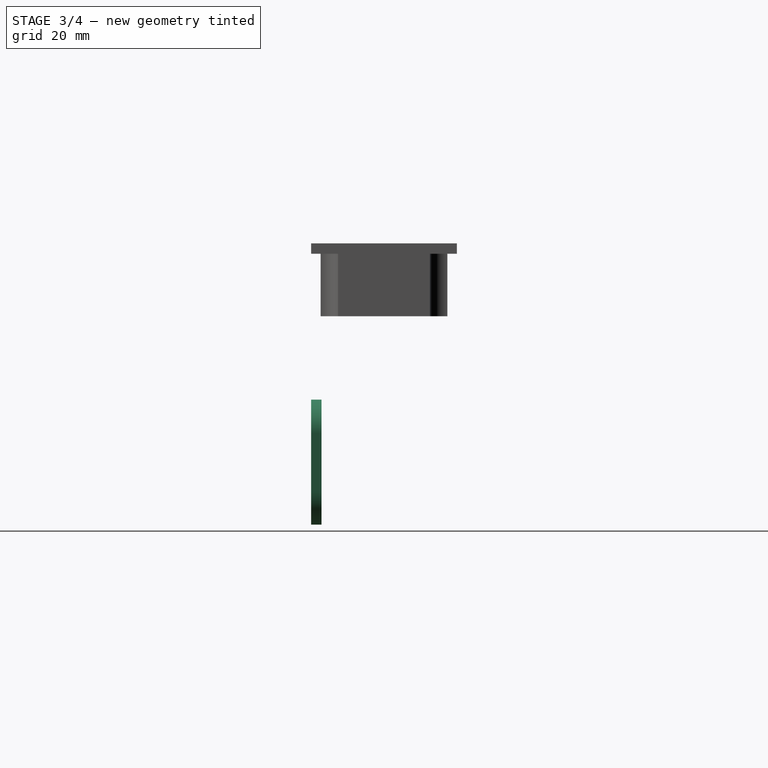
[diagram: stage 3 of 4 — right view after this stage's code; geometry added in this stage tinted green]
FEATURE [PartDesign::Body] Body002  label="Kistenende"
  AllowCompound = false
  Group = -> [Sketch005,Pad005]
  Origin = -> Origin003
  Tip = -> Pad005
FEATURE [Sketcher::SketchObject] Sketch008  label="HalterL"
  ArcFitTolerance = 1e-06
  AttachmentOffset = pos=(0,0,15.5) rot=(0,0,1;0rad)
  FullyConstrained = true
  MakeInternals = false
  MapMode = 5
  Placement = pos=(-0.75,-15,3.4e-15) rot=(1,0,0;1.5708rad)
  sketch-geometry (9):
    g0: ArcOfCircle CenterX=27 CenterY=72 CenterZ=0 NormalX=0 NormalY=0 NormalZ=1 AngleXU=0 Radius=8 StartAngle=0 EndAngle=1.5708
    g1: ArcOfCircle CenterX=27 CenterY=58 CenterZ=0 NormalX=0 NormalY=0 NormalZ=1 AngleXU=0 Radius=8 StartAngle=4.71239 EndAngle=6.28319
    g2: LineSegment StartX=35 StartY=72 StartZ=0 EndX=35 EndY=58 EndZ=0
    g3: ArcOfCircle CenterX=31 CenterY=72 CenterZ=0 NormalX=0 NormalY=0 NormalZ=1 AngleXU=0 Radius=2 StartAngle=-1.8e-15 EndAngle=3.14159
    g4: ArcOfCircle CenterX=31 CenterY=58 CenterZ=0 NormalX=0 NormalY=0 NormalZ=1 AngleXU=0 Radius=2 StartAngle=3.14159 EndAngle=6.28319
    g5: LineSegment StartX=33 StartY=72 StartZ=0 EndX=33 EndY=58 EndZ=0
    g6: LineSegment StartX=29 StartY=72 StartZ=0 EndX=29 EndY=58 EndZ=0
    g7: LineSegment [constr] StartX=27 StartY=72 StartZ=0 EndX=35 EndY=72 EndZ=0
    g8: LineSegment StartX=27 StartY=80 StartZ=0 EndX=27 EndY=50 EndZ=0
  constraints (25):
    c: DistanceY(g1,g0) = 30
    c: DistanceY(g-1,g1) = 50
    c: Radius(g0) = 8
    c: Radius(g1) = 8
    c: Coincident(g2,g1)
    c: Vertical(g2)
    c: Tangent(g2,g0) = 1.5708
    c: Tangent(g3,g5) = 1.5708
    c: Tangent(g3,g6) = -1.5708
    c: Tangent(g4,g5) = 1.5708
    c: Tangent(g4,g6) = -1.5708
    c: Equal(g3,g4)
    c: Vertical(g5)
    c: Equal(g5,g2)
    c: DistanceX(g3,g0) = 2
    c: DistanceX(g3,g3) = 4
    c: Coincident(g7,g0)
    c: Coincident(g7,g0)
    c: PointOnObject(g3,g7)
    c: Coincident(g8,g0)
    c: Coincident(g8,g1)
    c: Vertical(g8)
    c: DistanceX(g-1,g1) = 27
    c: Perpendicular(g0,g8)
    c: Perpendicular(g1,g8)
FEATURE [Sketcher::SketchObject] Sketch009  label="HalterR"
  ArcFitTolerance = 1e-06
  AttachmentOffset = pos=(0,0,15.5) rot=(0,0,1;0rad)
  FullyConstrained = true
  MakeInternals = false
  MapMode = 5
  Placement = pos=(0.75,-15,3.4e-15) rot=(1,0,0;1.5708rad)
  sketch-geometry (9):
    g0: ArcOfCircle CenterX=-27 CenterY=58 CenterZ=0 NormalX=0 NormalY=0 NormalZ=1 AngleXU=0 Radius=8 StartAngle=3.14159 EndAngle=4.71239
    g1: ArcOfCircle CenterX=-27 CenterY=72 CenterZ=0 NormalX=0 NormalY=0 NormalZ=1 AngleXU=0 Radius=8 StartAngle=1.5708 EndAngle=3.14159
    g2: LineSegment StartX=-35 StartY=58 StartZ=0 EndX=-35 EndY=72 EndZ=0
    g3: ArcOfCircle CenterX=-31 CenterY=72 CenterZ=0 NormalX=0 NormalY=0 NormalZ=1 AngleXU=0 Radius=2 StartAngle=-2.7e-15 EndAngle=3.14159
    g4: ArcOfCircle CenterX=-31 CenterY=58 CenterZ=0 NormalX=0 NormalY=0 NormalZ=1 AngleXU=0 Radius=2 StartAngle=3.14159 EndAngle=6.28319
    g5: LineSegment StartX=-29 StartY=72 StartZ=0 EndX=-29 EndY=58 EndZ=0
    g6: LineSegment StartX=-33 StartY=72 StartZ=0 EndX=-33 EndY=58 EndZ=0
    g7: LineSegment [constr] StartX=-35 StartY=72 StartZ=0 EndX=-27 EndY=72 EndZ=0
    g8: LineSegment StartX=-27 StartY=80 StartZ=0 EndX=-27 EndY=50 EndZ=0
  constraints (25):
    c: Radius(g0) = 8
    c: Radius(g1) = 8
    c: Coincident(g2,g0)
    c: Vertical(g2)
    c: Tangent(g2,g1) = 1.5708
    c: Tangent(g3,g5) = 1.5708
    c: Tangent(g3,g6) = -1.5708
    c: Tangent(g4,g5) = 1.5708
    c: Tangent(g4,g6) = -1.5708
    c: Equal(g3,g4)
    c: Vertical(g6)
    c: Equal(g6,g2)
    c: Coincident(g7,g1)
    c: Coincident(g7,g1)
    c: PointOnObject(g3,g7)
    c: DistanceX(g1,g3) = 2
    c: DistanceX(g3,g3) = 4
    c: Coincident(g8,g1)
    c: Coincident(g8,g0)
    c: Vertical(g8)
    c: Perpendicular(g1,g8)
    c: Perpendicular(g0,g8)
    c: DistanceX(g0,g-1) = 27
    c: DistanceY(g0,g1) = 30
    c: DistanceY(g-1,g0) = 50
FEATURE [PartDesign::Pad] Pad007  label="HalterL001"
  Direction = (0,-1,0)
  Length = 2.5
  Length2 = 10
  Placement = pos=(-0.75,-15,3.4e-15) rot=(1,0,0;1.5708rad)
  Profile = -> Sketch008
  ReferenceAxis = -> Sketch008 [N_Axis]
  Refine = true
  Suppressed = false
  Type = 0
FEATURE [PartDesign::Pad] Pad008  label="HalterR001"
  Direction = (0,-1,0)
  Length = 2.5
  Length2 = 10
  Placement = pos=(0.75,-15,3.4e-15) rot=(1,0,0;1.5708rad)
  Profile = -> Sketch009
  ReferenceAxis = -> Sketch009 [N_Axis]
  Refine = true
  Suppressed = false
  Type = 0
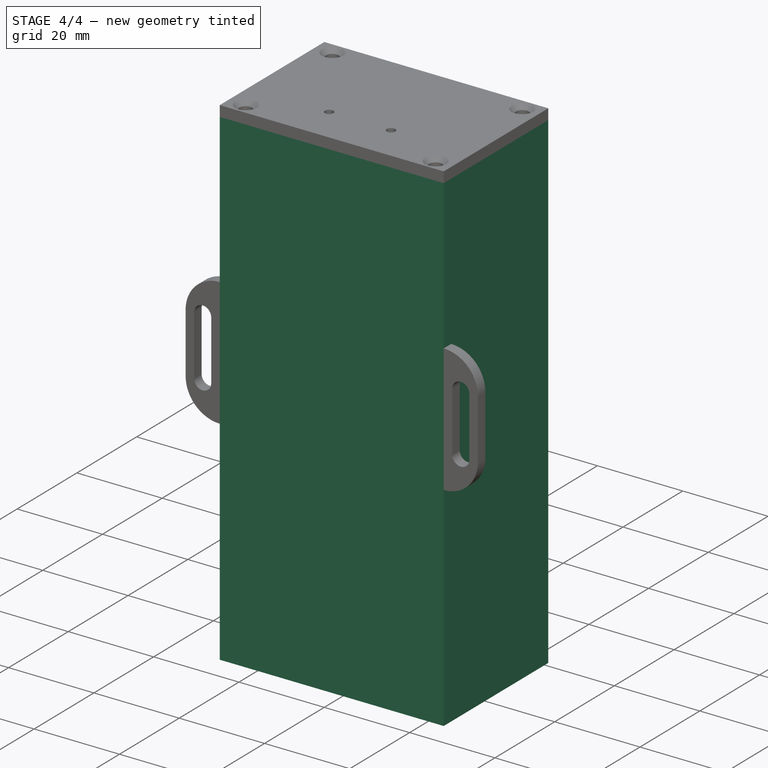
[diagram: stage 4 of 4 — iso view after this stage's code; geometry added in this stage tinted green]
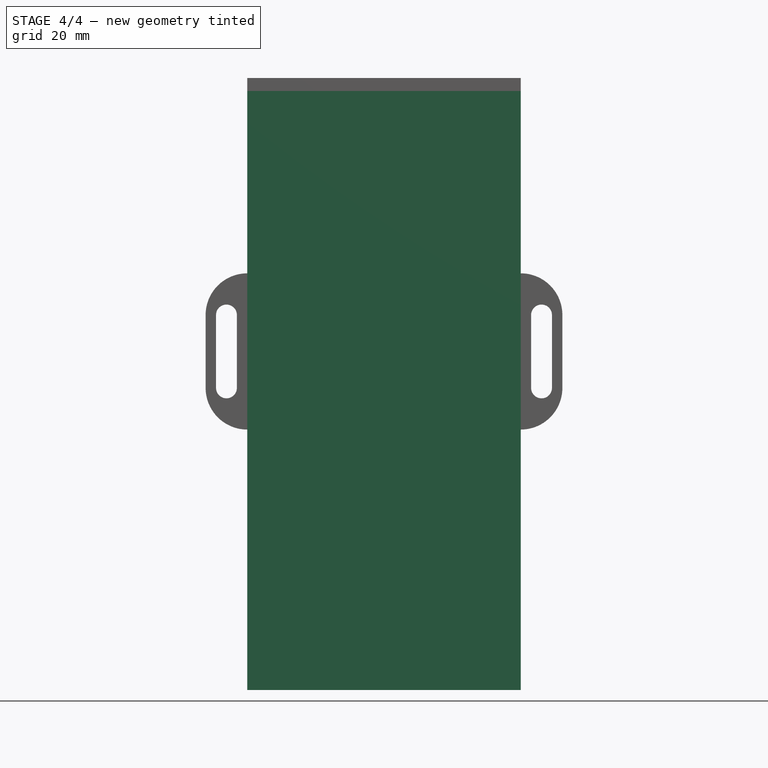
[diagram: stage 4 of 4 — front view after this stage's code; geometry added in this stage tinted green]
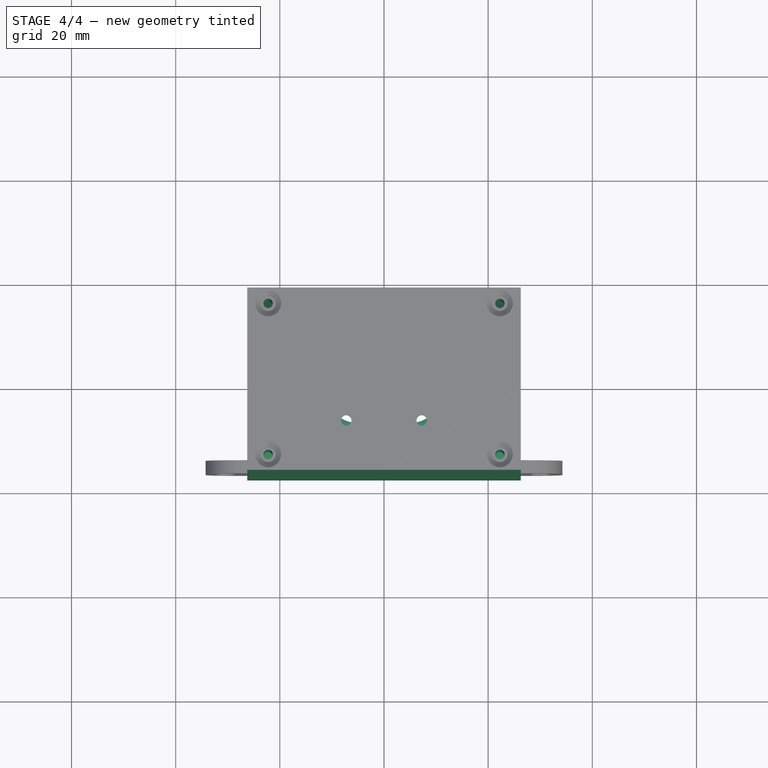
[diagram: stage 4 of 4 — top view after this stage's code; geometry added in this stage tinted green]
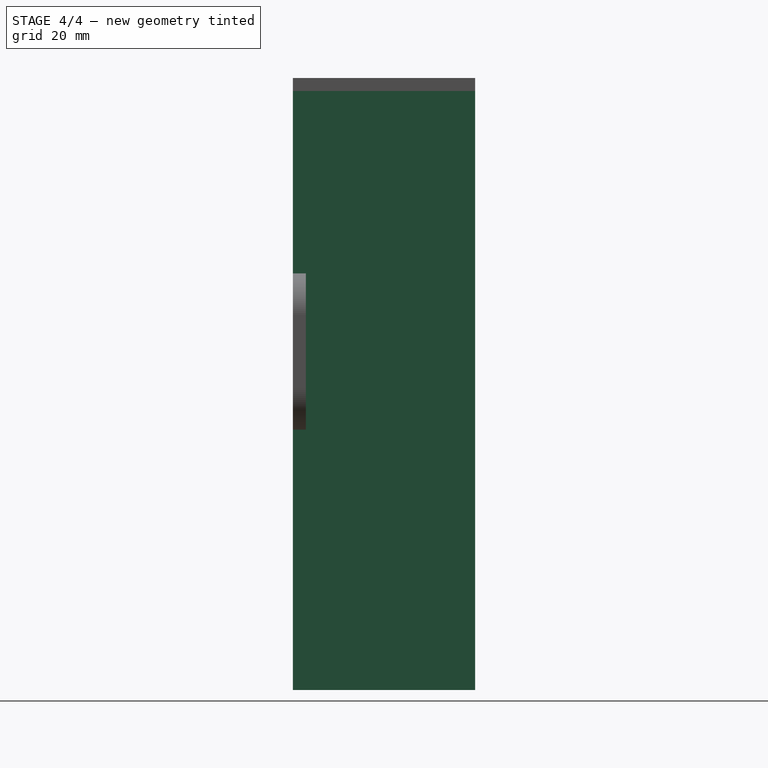
[diagram: stage 4 of 4 — right view after this stage's code; geometry added in this stage tinted green]
FEATURE [Sketcher::SketchObject] Sketch  label="Front"
  ArcFitTolerance = 1e-06
  FullyConstrained = true
  MakeInternals = false
  MapMode = 5
  sketch-geometry (22):
    g0: LineSegment StartX=-26.25 StartY=17.5 StartZ=0 EndX=-26.25 EndY=-17.5 EndZ=0
    g1: LineSegment StartX=-26.25 StartY=-17.5 StartZ=0 EndX=26.25 EndY=-17.5 EndZ=0
    g2: LineSegment StartX=26.25 StartY=-17.5 StartZ=0 EndX=26.25 EndY=17.5 EndZ=0
    g3: LineSegment StartX=26.25 StartY=17.5 StartZ=0 EndX=-26.25 EndY=17.5 EndZ=0
    g4: ArcOfCircle CenterX=-12.5 CenterY=-0.5 CenterZ=0 NormalX=0 NormalY=0 NormalZ=1 AngleXU=0 Radius=3.5 StartAngle=1.5708 EndAngle=4.71239
    g5: ArcOfCircle CenterX=12.5 CenterY=-0.5 CenterZ=0 NormalX=0 NormalY=0 NormalZ=1 AngleXU=0 Radius=3.5 StartAngle=4.71239 EndAngle=7.85398
    g6: LineSegment StartX=-12.5 StartY=3 StartZ=0 EndX=-10.3619 EndY=3 EndZ=0
    g7: LineSegment StartX=-12.5 StartY=-4 StartZ=0 EndX=-10.3619 EndY=-4 EndZ=0
    g8: LineSegment StartX=-5 StartY=5.5 StartZ=0 EndX=5 EndY=5.5 EndZ=0
    g9: LineSegment StartX=-5 StartY=-6.5 StartZ=0 EndX=5 EndY=-6.5 EndZ=0
    g10: ArcOfCircle CenterX=-5 CenterY=-0.5 CenterZ=0 NormalX=0 NormalY=0 NormalZ=1 AngleXU=0 Radius=6 StartAngle=1.5708 EndAngle=2.44337
    g11: ArcOfCircle CenterX=-5 CenterY=-0.5 CenterZ=0 NormalX=0 NormalY=0 NormalZ=1 AngleXU=0 Radius=6 StartAngle=3.83982 EndAngle=4.71239
    g12: ArcOfCircle CenterX=-10.3619 CenterY=4 CenterZ=0 NormalX=0 NormalY=0 NormalZ=1 AngleXU=0 Radius=1 StartAngle=4.71239 EndAngle=5.58496
    g13: ArcOfCircle CenterX=-10.3619 CenterY=-5 CenterZ=0 NormalX=0 NormalY=0 NormalZ=1 AngleXU=0 Radius=1 StartAngle=0.698222 EndAngle=1.5708
    g14: LineSegment StartX=12.5 StartY=3 StartZ=0 EndX=10.3619 EndY=3 EndZ=0
    g15: LineSegment StartX=12.5 StartY=-4 StartZ=0 EndX=10.3619 EndY=-4 EndZ=0
    g16: ArcOfCircle CenterX=5 CenterY=-0.5 CenterZ=0 NormalX=0 NormalY=0 NormalZ=1 AngleXU=0 Radius=6 StartAngle=0.698222 EndAngle=1.5708
    g17: ArcOfCircle CenterX=5 CenterY=-0.5 CenterZ=0 NormalX=0 NormalY=0 NormalZ=1 AngleXU=0 Radius=6 StartAngle=4.71239 EndAngle=5.58496
    g18: ArcOfCircle CenterX=10.3619 CenterY=4 CenterZ=0 NormalX=0 NormalY=0 NormalZ=1 AngleXU=0 Radius=1 StartAngle=3.83982 EndAngle=4.71239
    g19: ArcOfCircle CenterX=10.3619 CenterY=-5 CenterZ=0 NormalX=0 NormalY=0 NormalZ=1 AngleXU=0 Radius=1 StartAngle=1.5708 EndAngle=2.44337
    g20: LineSegment [constr] StartX=-12.5 StartY=-0.5 StartZ=0 EndX=12.5 EndY=-0.5 EndZ=0
    g21: Circle CenterX=19.25 CenterY=0 CenterZ=0 NormalX=0 NormalY=0 NormalZ=1 AngleXU=0 Radius=2
  constraints (56):
    c: Coincident(g0,g1)
    c: Coincident(g1,g2)
    c: Coincident(g2,g3)
    c: Coincident(g3,g0)
    c: Vertical(g0)
    c: Vertical(g2)
    c: Horizontal(g1)
    c: Horizontal(g3)
    c: DistanceX(g3,g3) = 52.5  'box_breite'
    c: DistanceY(g2,g2) = 35
    c: Symmetric(g0,g1,g-1)
    c: Tangent(g4,g6) = 1.5708
    c: Tangent(g4,g7) = -1.5708
    c: Equal(g4,g5)
    c: Diameter(g4) = 7
    c: Symmetric(g5,g4,g-2)
    c: DistanceX(g4,g5) = 25
    c: Tangent(g10,g8) = 1.5708
    c: Tangent(g11,g9) = -1.5708
    c: Tangent(g16,g8) = 1.5708
    c: Tangent(g17,g9) = -1.5708
    c: Symmetric(g10,g17,g-2)
    c: DistanceX(g10,g17) = 10
    c: Diameter(g10) = 12
    c: Tangent(g10,g12) = 1.5708
    c: Tangent(g6,g12) = -1.5708
    c: Tangent(g7,g13) = 1.5708
    c: Tangent(g11,g13) = 1.5708
    c: Radius(g12) = 1
    c: Parallel(g6,g-1)
    c: Parallel(g7,g-1)
    c: Radius(g13) = 1
    c: Radius(g11) = 6
    c: Parallel(g8,g-1)
    c: Parallel(g9,g-1)
    c: Equal(g8,g9)
    c: Horizontal(g14)
    c: Coincident(g15,g5)
    c: Horizontal(g15)
    c: Coincident(g17,g16)
    c: Tangent(g16,g18) = 1.5708
    c: Tangent(g14,g18) = 1.5708
    c: Tangent(g17,g19) = 1.5708
    c: Tangent(g15,g19) = -1.5708
    c: Radius(g18) = 1
    c: Radius(g19) = 1
    c: Equal(g16,g17)
    c: Tangent(g5,g15,g5) = 1.5708
    c: Tangent(g14,g5) = -1.5708
    c: Coincident(g20,g4)
    c: Coincident(g20,g5)
    c: PointOnObject(g10,g20)
    c: DistanceY(g1,g5) = 17
    c: PointOnObject(g21,g-1)
    c: Radius(g21) = 2
    c: DistanceX(g21,g2) = 7
FEATURE [PartDesign::Pad] Pad  label="PadFront"
  Direction = (0,0,1)
  Length = 2
  Length2 = 10
  Profile = -> Sketch
  ReferenceAxis = -> Sketch [N_Axis]
  Refine = true
  Suppressed = false
  Type = 0
FEATURE [Sketcher::SketchObject] Sketch001  label="kiste"
  ArcFitTolerance = 1e-06
  AttachmentOffset = pos=(0,0,2) rot=(0,0,1;0rad)
  FullyConstrained = true
  MakeInternals = false
  MapMode = 5
  Placement = pos=(0,0,2) rot=(0,0,1;0rad)
  sketch-geometry (26):
    g0: LineSegment StartX=-26.25 StartY=17.5 StartZ=0 EndX=-26.25 EndY=-17.5 EndZ=0
    g1: LineSegment StartX=-26.25 StartY=-17.5 StartZ=0 EndX=26.25 EndY=-17.5 EndZ=0
    g2: LineSegment StartX=26.25 StartY=-17.5 StartZ=0 EndX=26.25 EndY=17.5 EndZ=0
    g3: LineSegment StartX=26.25 StartY=17.5 StartZ=0 EndX=-26.25 EndY=17.5 EndZ=0
    g4: LineSegment StartX=-23.25 StartY=-15.5 StartZ=0 EndX=23.25 EndY=-15.5 EndZ=0
    g5: LineSegment StartX=23.25 StartY=-15.5 StartZ=0 EndX=23.25 EndY=-8.65 EndZ=0
    g6: LineSegment StartX=23.25 StartY=15.5 StartZ=0 EndX=-23.25 EndY=15.5 EndZ=0
    g7: LineSegment StartX=-24.75 StartY=-6.5 StartZ=0 EndX=-24.75 EndY=-8.5 EndZ=0
    g8: LineSegment StartX=-24.75 StartY=-8.5 StartZ=0 EndX=-23.4 EndY=-8.5 EndZ=0
    g9: LineSegment StartX=-23.4 StartY=-6.5 StartZ=0 EndX=-24.75 EndY=-6.5 EndZ=0
    g10: LineSegment StartX=-23.25 StartY=15.5 StartZ=0 EndX=-23.25 EndY=13.5 EndZ=0
    g11: LineSegment StartX=-23.25 StartY=-8.65 StartZ=0 EndX=-23.25 EndY=-15.5 EndZ=0
    g12: ArcOfCircle CenterX=-23.4 CenterY=-6.35 CenterZ=0 NormalX=0 NormalY=0 NormalZ=1 AngleXU=0 Radius=0.15 StartAngle=4.71239 EndAngle=6.28319
    g13: ArcOfCircle CenterX=-23.4 CenterY=-8.65 CenterZ=0 NormalX=0 NormalY=0 NormalZ=1 AngleXU=0 Radius=0.15 StartAngle=1e-15 EndAngle=1.5708
    g14: LineSegment StartX=23.4 StartY=-8.5 StartZ=0 EndX=24.9 EndY=-8.5 EndZ=0
    g15: LineSegment StartX=24.9 StartY=-8.5 StartZ=0 EndX=24.9 EndY=-6.5 EndZ=0
    g16: LineSegment StartX=24.9 StartY=-6.5 StartZ=0 EndX=23.4 EndY=-6.5 EndZ=0
    g17: LineSegment StartX=23.25 StartY=-6.35 StartZ=0 EndX=23.25 EndY=12.3 EndZ=0
    g18: ArcOfCircle CenterX=23.4 CenterY=-6.35 CenterZ=0 NormalX=0 NormalY=0 NormalZ=1 AngleXU=0 Radius=0.15 StartAngle=3.14159 EndAngle=4.71239
    g19: ArcOfCircle CenterX=23.4 CenterY=-8.65 CenterZ=0 NormalX=0 NormalY=0 NormalZ=1 AngleXU=0 Radius=0.15 StartAngle=1.5708 EndAngle=3.14159
    g20: LineSegment StartX=-23.25 StartY=13.5 StartZ=0 EndX=23.25 EndY=13.5 EndZ=0
    g21: LineSegment StartX=-23.25 StartY=12.3 StartZ=0 EndX=23.25 EndY=12.3 EndZ=0
    g22: LineSegment StartX=-23.25 StartY=12.3 StartZ=0 EndX=-23.25 EndY=-6.35 EndZ=0
    g23: LineSegment StartX=23.25 StartY=13.5 StartZ=0 EndX=23.25 EndY=15.5 EndZ=0
    g24: LineSegment [constr] StartX=-23.25 StartY=15.5 StartZ=0 EndX=-23.25 EndY=-15.5 EndZ=0
    g25: LineSegment [constr] StartX=23.25 StartY=15.5 StartZ=0 EndX=23.25 EndY=-15.5 EndZ=0
  constraints (73):
    c: Coincident(g0,g1)
    c: Coincident(g1,g2)
    c: Coincident(g2,g3)
    c: Coincident(g3,g0)
    c: Vertical(g0)
    c: Vertical(g2)
    c: Horizontal(g1)
    c: Horizontal(g3)
    c: Symmetric(g0,g2,g-1)
    c: DistanceY(g0,g0) = 35
    c: Coincident(g11,g4)
    c: Coincident(g4,g5)
    c: Coincident(g23,g6)
    c: Coincident(g6,g10)
    c: Vertical(g5)
    c: Horizontal(g4)
    c: Horizontal(g6)
    c: DistanceY(g0,g11) = 2
    c: DistanceY(g10,g0) = 2
    c: Coincident(g7,g8)
    c: Coincident(g9,g7)
    c: Vertical(g7)
    c: Horizontal(g8)
    c: Horizontal(g9)
    c: DistanceY(g7,g7) = 2
    c: DistanceY(g11,g7) = 7
    c: Vertical(g10)
    c: Vertical(g11)
    c: Tangent(g9,g12) = 1.5708
    c: Tangent(g8,g13) = 1.5708
    c: Tangent(g11,g13) = 1.5708
    c: DistanceX(g7,g22) = 1.5
    c: Radius(g12) = 0.15
    c: Coincident(g14,g15)
    c: Coincident(g15,g16)
    c: Vertical(g15)
    c: Horizontal(g14)
    c: Horizontal(g16)
    c: DistanceY(g14,g15) = 2
    c: DistanceY(g4,g14) = 7
    c: Parallel(g17,g-2)
    c: Tangent(g17,g18) = 1.5708
    c: Tangent(g16,g18) = 1.5708
    c: Tangent(g5,g19) = 1.5708
    c: Tangent(g14,g19) = 1.5708
    c: Radius(g19) = 0.15
    c: Radius(g18) = 0.15
    c: DistanceX(g18,g15) = 1.5
    c: Radius(g13) = 0.15
    c: Equal(g6,g4)
    c: DistanceX(g0,g2) = 52.5
    c: DistanceX(g0,g6) = 3
    c: DistanceX(g6,g2) = 3
    c: Equal(g16,g14)
    c: PointOnObject(g20,g23)
    c: Horizontal(g20)
    c: PointOnObject(g21,g22)
    c: Horizontal(g21)
    c: Coincident(g10,g20)
    c: PointOnObject(g22,g21)
    c: Coincident(g17,g21)
    c: PointOnObject(g23,g20)
    c: DistanceY(g10,g6) = 2
    c: DistanceY(g21,g10) = 1.2
    c: Perpendicular(g20,g23)
    c: Coincident(g24,g6)
    c: Coincident(g24,g4)
    c: Vertical(g24)
    c: Tangent(g24,g12)
    c: Coincident(g25,g6)
    c: Coincident(g25,g4)
    c: PointOnObject(g21,g24)
    c: Tangent(g22,g12) = 1.5708
FEATURE [PartDesign::Pad] Pad001  label="PadKiste"
  BaseFeature = -> Pad
  Direction = (0,0,1)
  Length = 88
  Length2 = 10
  Profile = -> Sketch001
  ReferenceAxis = -> Sketch001 [N_Axis]
  Refine = true
  Suppressed = false
  Type = 0
FEATURE [Sketcher::SketchObject] Sketch003  label="Platte"
  ArcFitTolerance = 1e-06
  AttachmentOffset = pos=(0,0,115) rot=(0,0,1;0rad)
  AttachmentSupport = -> [XY_Plane002]
  FullyConstrained = true
  MakeInternals = false
  MapMode = 5
  Placement = pos=(0,0,115) rot=(0,0,1;0rad)
  sketch-geometry (10):
    g0: LineSegment StartX=-26.25 StartY=17.5 StartZ=0 EndX=-26.25 EndY=-17.5 EndZ=0
    g1: LineSegment StartX=-26.25 StartY=-17.5 StartZ=0 EndX=26.25 EndY=-17.5 EndZ=0
    g2: LineSegment StartX=26.25 StartY=-17.5 StartZ=0 EndX=26.25 EndY=17.5 EndZ=0
    g3: LineSegment StartX=26.25 StartY=17.5 StartZ=0 EndX=-26.25 EndY=17.5 EndZ=0
    g4: Circle CenterX=-22.25 CenterY=-14.5 CenterZ=0 NormalX=0 NormalY=0 NormalZ=1 AngleXU=0 Radius=1.5
    g5: Circle CenterX=22.25 CenterY=-14.5 CenterZ=0 NormalX=0 NormalY=0 NormalZ=1 AngleXU=0 Radius=1.5
    g6: Circle CenterX=22.25 CenterY=14.5 CenterZ=0 NormalX=0 NormalY=0 NormalZ=1 AngleXU=0 Radius=1.5
    g7: Circle CenterX=-22.25 CenterY=14.5 CenterZ=0 NormalX=0 NormalY=0 NormalZ=1 AngleXU=0 Radius=1.5
    g8: Circle CenterX=-7.25 CenterY=-8 CenterZ=0 NormalX=0 NormalY=0 NormalZ=1 AngleXU=0 Radius=1
    g9: Circle CenterX=7.25 CenterY=-8 CenterZ=0 NormalX=0 NormalY=0 NormalZ=1 AngleXU=0 Radius=1
  constraints (29):
    c: Coincident(g0,g1)
    c: Coincident(g1,g2)
    c: Coincident(g2,g3)
    c: Coincident(g3,g0)
    c: Vertical(g0)
    c: Vertical(g2)
    c: Horizontal(g1)
    c: Horizontal(g3)
    c: Symmetric(g0,g2,g-1)
    c: DistanceY(g0,g0) = 35
    c: DistanceX(g0,g2) = 52.5
    c: Diameter(g7) = 3
    c: Diameter(g6) = 3
    c: Equal(g6,g4)
    c: Diameter(g5) = 3
    c: Radius(g9) = 1
    c: Radius(g8) = 1
    c: DistanceX(g9,g1) = 19
    c: DistanceX(g0,g8) = 19
    c: DistanceY(g1,g9) = 9.5
    c: DistanceY(g0,g8) = 9.5
    c: DistanceX(g0,g4) = 4
    c: DistanceY(g0,g4) = 3
    c: DistanceX(g0,g7) = 4
    c: DistanceY(g7,g0) = 3
    c: DistanceX(g6,g2) = 4
    c: DistanceX(g5,g1) = 4
    c: DistanceY(g6,g2) = 3
    c: DistanceY(g1,g5) = 3
FEATURE [Sketcher::SketchObject] Sketch005  label="Verschraubung"
  ArcFitTolerance = 1e-06
  AttachmentOffset = pos=(0,0,90) rot=(0,0,1;0rad)
  AttachmentSupport = -> [XY_Plane003]
  FullyConstrained = true
  MakeInternals = false
  MapMode = 5
  Placement = pos=(0,0,90) rot=(0,0,1;0rad)
  sketch-geometry (32):
    g0: LineSegment StartX=-26.25 StartY=17.5 StartZ=0 EndX=-26.25 EndY=-17.5 EndZ=0
    g1: LineSegment StartX=-26.25 StartY=-17.5 StartZ=0 EndX=26.25 EndY=-17.5 EndZ=0
    g2: LineSegment StartX=26.25 StartY=-17.5 StartZ=0 EndX=26.25 EndY=17.5 EndZ=0
    g3: LineSegment StartX=26.25 StartY=17.5 StartZ=0 EndX=-26.25 EndY=17.5 EndZ=0
    g4: LineSegment StartX=-19.25 StartY=-15.5 StartZ=0 EndX=19.25 EndY=-15.5 EndZ=0
    g5: LineSegment StartX=23.25 StartY=-11.5 StartZ=0 EndX=23.25 EndY=-8.65 EndZ=0
    g6: LineSegment StartX=19.25 StartY=15.5 StartZ=0 EndX=-19.25 EndY=15.5 EndZ=0
    g7: LineSegment StartX=-24.75 StartY=-6.5 StartZ=0 EndX=-24.75 EndY=-8.5 EndZ=0
    g8: LineSegment StartX=-24.75 StartY=-8.5 StartZ=0 EndX=-23.4 EndY=-8.5 EndZ=0
    g9: LineSegment StartX=-23.4 StartY=-6.5 StartZ=0 EndX=-24.75 EndY=-6.5 EndZ=0
    g10: LineSegment StartX=-23.25 StartY=11.5 StartZ=0 EndX=-23.25 EndY=-6.35 EndZ=0
    g11: LineSegment StartX=-23.25 StartY=-8.65 StartZ=0 EndX=-23.25 EndY=-11.5 EndZ=0
    g12: ArcOfCircle CenterX=-23.4 CenterY=-6.35 CenterZ=0 NormalX=0 NormalY=0 NormalZ=1 AngleXU=0 Radius=0.15 StartAngle=4.71239 EndAngle=6.28319
    g13: ArcOfCircle CenterX=-23.4 CenterY=-8.65 CenterZ=0 NormalX=0 NormalY=0 NormalZ=1 AngleXU=0 Radius=0.15 StartAngle=-2.7e-15 EndAngle=1.5708
    g14: LineSegment StartX=23.4 StartY=-8.5 StartZ=0 EndX=24.9 EndY=-8.5 EndZ=0
    g15: LineSegment StartX=24.9 StartY=-8.5 StartZ=0 EndX=24.9 EndY=-6.5 EndZ=0
    g16: LineSegment StartX=24.9 StartY=-6.5 StartZ=0 EndX=23.4 EndY=-6.5 EndZ=0
    g17: LineSegment StartX=23.25 StartY=-6.35 StartZ=0 EndX=23.25 EndY=11.5 EndZ=0
    g18: ArcOfCircle CenterX=23.4 CenterY=-6.35 CenterZ=0 NormalX=0 NormalY=0 NormalZ=1 AngleXU=0 Radius=0.15 StartAngle=3.14159 EndAngle=4.71239
    g19: ArcOfCircle CenterX=23.4 CenterY=-8.65 CenterZ=0 NormalX=0 NormalY=0 NormalZ=1 AngleXU=0 Radius=0.15 StartAngle=1.5708 EndAngle=3.14159
    g20: ArcOfCircle CenterX=-23.25 CenterY=15.5 CenterZ=0 NormalX=0 NormalY=0 NormalZ=1 AngleXU=0 Radius=4 StartAngle=4.71239 EndAngle=6.28319
    g21: ArcOfCircle CenterX=23.25 CenterY=15.5 CenterZ=0 NormalX=0 NormalY=0 NormalZ=1 AngleXU=0 Radius=4 StartAngle=3.14159 EndAngle=4.71239
    g22: ArcOfCircle CenterX=-23.25 CenterY=-15.5 CenterZ=0 NormalX=0 NormalY=0 NormalZ=1 AngleXU=0 Radius=4 StartAngle=0 EndAngle=1.5708
    g23: ArcOfCircle CenterX=23.25 CenterY=-15.5 CenterZ=0 NormalX=0 NormalY=0 NormalZ=1 AngleXU=0 Radius=4 StartAngle=1.5708 EndAngle=3.14159
    g24: Circle CenterX=-22.25 CenterY=-14.5 CenterZ=0 NormalX=0 NormalY=0 NormalZ=1 AngleXU=0 Radius=0.9
    g25: Circle CenterX=22.25 CenterY=-14.5 CenterZ=0 NormalX=0 NormalY=0 NormalZ=1 AngleXU=0 Radius=0.9
    g26: Circle CenterX=22.25 CenterY=14.5 CenterZ=0 NormalX=0 NormalY=0 NormalZ=1 AngleXU=0 Radius=0.9
    g27: Circle CenterX=-22.25 CenterY=14.5 CenterZ=0 NormalX=0 NormalY=0 NormalZ=1 AngleXU=0 Radius=0.9
    g28: LineSegment [constr] StartX=-23.25 StartY=-15.5 StartZ=0 EndX=-20.4216 EndY=-12.6716 EndZ=0
    g29: LineSegment [constr] StartX=23.25 StartY=-15.5 StartZ=0 EndX=20.4216 EndY=-12.6716 EndZ=0
    g30: LineSegment [constr] StartX=23.25 StartY=15.5 StartZ=0 EndX=20.4216 EndY=12.6716 EndZ=0
    g31: LineSegment [constr] StartX=-23.25 StartY=15.5 StartZ=0 EndX=-20.4216 EndY=12.6716 EndZ=0
  constraints (95):
    c: Coincident(g0,g1)
    c: Coincident(g1,g2)
    c: Coincident(g2,g3)
    c: Coincident(g3,g0)
    c: Vertical(g0)
    c: Vertical(g2)
    c: Horizontal(g1)
    c: Horizontal(g3)
    c: Symmetric(g0,g2,g-1)
    c: DistanceY(g0,g0) = 35
    c: Vertical(g5)
    c: Horizontal(g4)
    c: Horizontal(g6)
    c: DistanceY(g0,g22) = 2
    c: DistanceY(g20,g0) = 2
    c: Coincident(g7,g8)
    c: Coincident(g9,g7)
    c: Vertical(g7)
    c: Horizontal(g8)
    c: Horizontal(g9)
    c: DistanceY(g7,g7) = 2
    c: DistanceY(g22,g7) = 7
    c: Vertical(g10)
    c: Vertical(g11)
    c: Tangent(g10,g12) = 1.5708
    c: Tangent(g9,g12) = 1.5708
    c: Tangent(g8,g13) = 1.5708
    c: Tangent(g11,g13) = 1.5708
    c: DistanceX(g7,g10) = 1.5
    c: Radius(g12) = 0.15
    c: Coincident(g14,g15)
    c: Coincident(g15,g16)
    c: Vertical(g15)
    c: Horizontal(g14)
    c: Horizontal(g16)
    c: DistanceY(g14,g15) = 2
    c: DistanceY(g23,g14) = 7
    c: Parallel(g17,g-2)
    c: Tangent(g17,g18) = 1.5708
    c: Tangent(g16,g18) = 1.5708
    c: Tangent(g5,g19) = 1.5708
    c: Tangent(g14,g19) = 1.5708
    c: Radius(g19) = 0.15
    c: Radius(g18) = 0.15
    c: DistanceX(g18,g15) = 1.5
    c: Radius(g13) = 0.15
    c: DistanceX(g0,g2) = 52.5
    c: Equal(g16,g14)
    c: Radius(g20) = 4
    c: Radius(g23) = 4
    c: Radius(g22) = 4
    c: Radius(g21) = 4
    c: Coincident(g11,g22)
    c: Coincident(g4,g22)
    c: Coincident(g10,g20)
    c: Coincident(g6,g20)
    c: Coincident(g6,g21)
    c: Coincident(g17,g21)
    c: Coincident(g4,g23)
    c: Coincident(g5,g23)
    c: DistanceX(g0,g20) = 3
    c: Perpendicular(g10,g20,g10) = 1.5708
    c: Perpendicular(g21,g6,g6) = 4.71239
    c: Perpendicular(g21,g17,g17) = 1.5708
    c: Perpendicular(g23,g4)
    c: Perpendicular(g23,g5)
    c: Perpendicular(g22,g4)
    c: Perpendicular(g22,g11)
    c: DistanceX(g21,g2) = 3
    c: Equal(g9,g8)
    c: Perpendicular(g20,g6)
    c: Diameter(g25) = 1.8
    c: Diameter(g26) = 1.8
    c: Diameter(g27) = 1.8
    c: Coincident(g28,g22)
    c: PointOnObject(g28,g22)
    c: PointOnObject(g24,g28)
    c: Diameter(g24) = 1.8
    c: DistanceY(g22,g24) = 1
    c: DistanceX(g22,g24) = 1
    c: Coincident(g29,g23)
    c: PointOnObject(g29,g23)
    c: PointOnObject(g25,g29)
    c: DistanceY(g23,g25) = 1
    c: DistanceX(g25,g23) = 1
    c: Coincident(g30,g21)
    c: PointOnObject(g30,g21)
    c: PointOnObject(g26,g30)
    c: DistanceY(g26,g21) = 1
    c: DistanceX(g26,g21) = 1
    c: Coincident(g31,g20)
    c: PointOnObject(g31,g20)
    c: PointOnObject(g27,g31)
    c: DistanceY(g27,g20) = 1
    c: DistanceX(g20,g27) = 1
FEATURE [PartDesign::Pad] Pad005  label="PadEnde"
  Direction = (0,0,1)
  Length = 25
  Length2 = 10
  Profile = -> Sketch005
  ReferenceAxis = -> Sketch005 [N_Axis]
  Refine = true
  Suppressed = false
  Type = 0
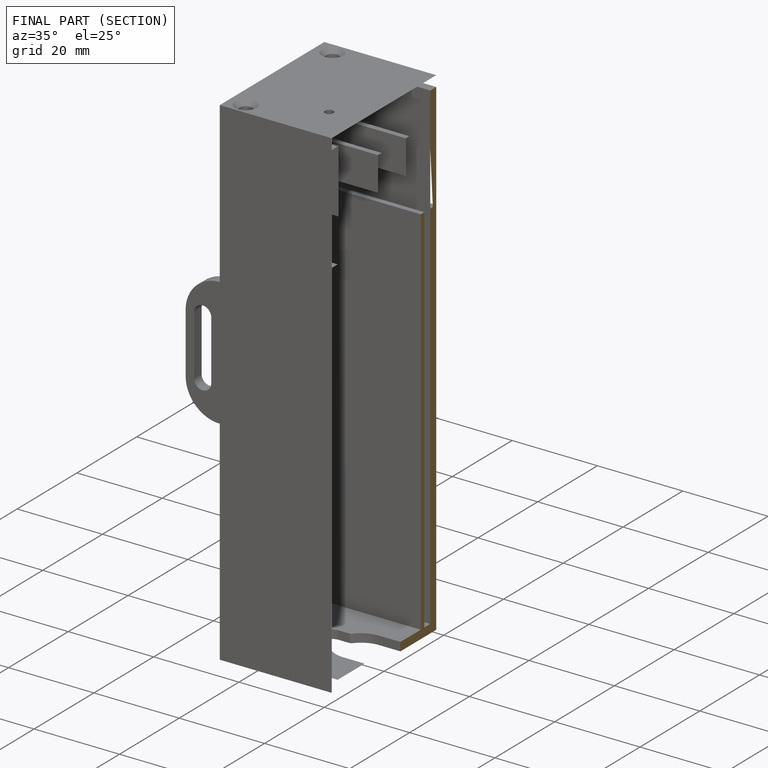
[diagram: finished part — half-section view (interior)]
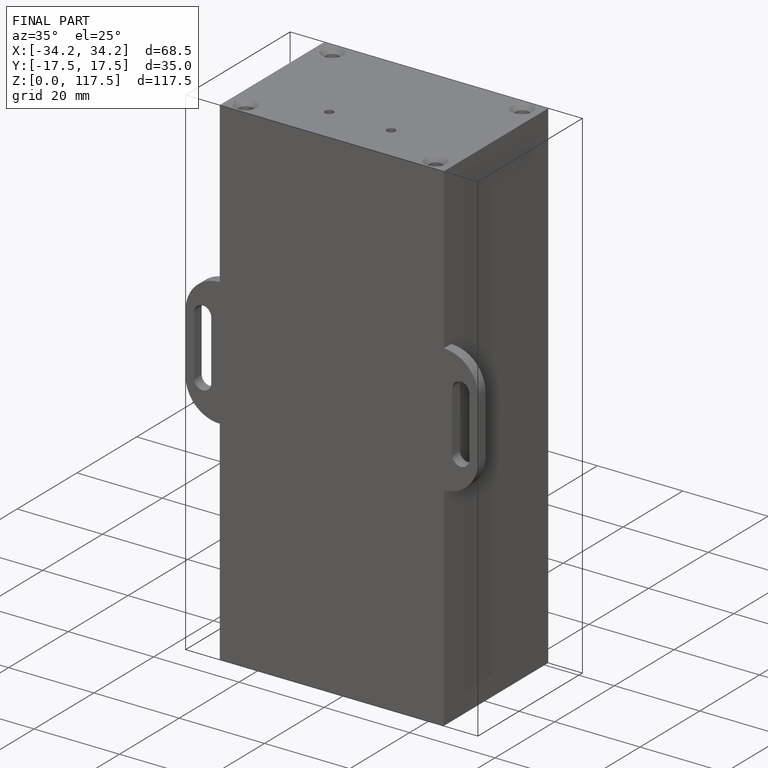
[diagram: finished part — iso view with bounding-box wireframe]
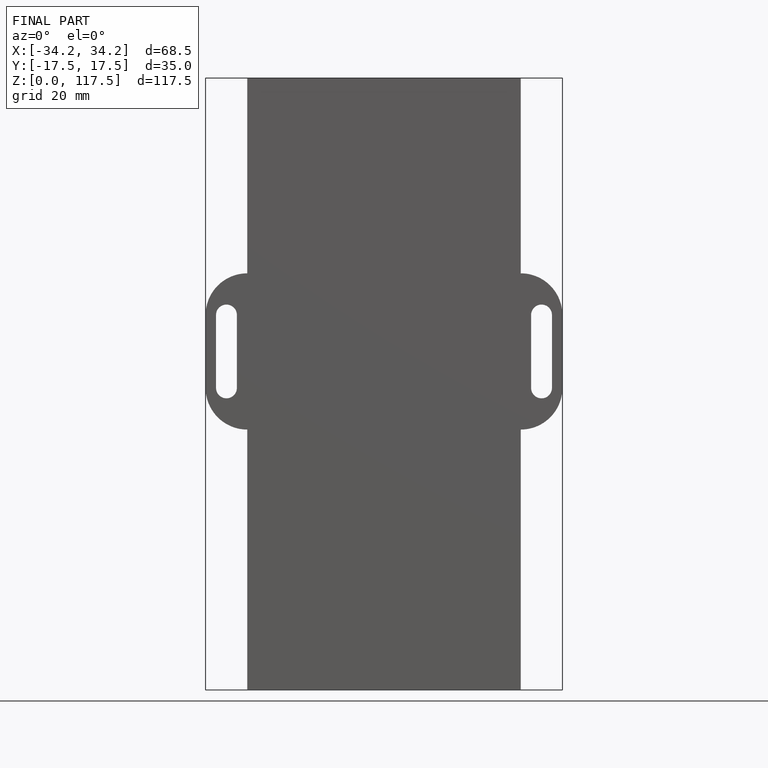
[diagram: finished part — front view with bounding-box wireframe]
